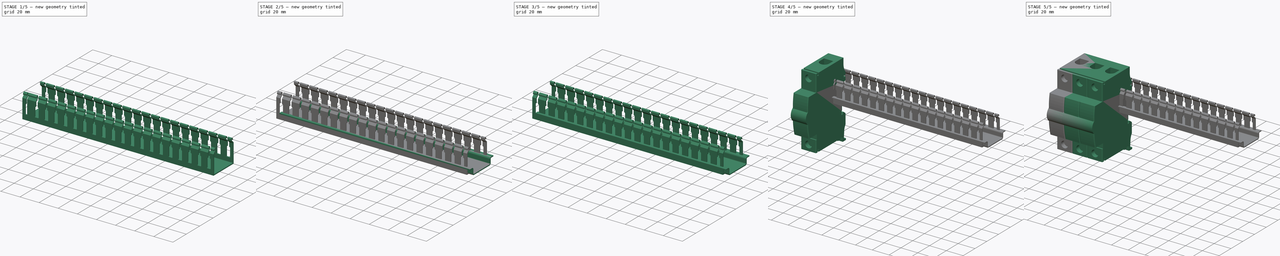
[diagram: build sequence overview — one tinted view per stage of 5, left to right]
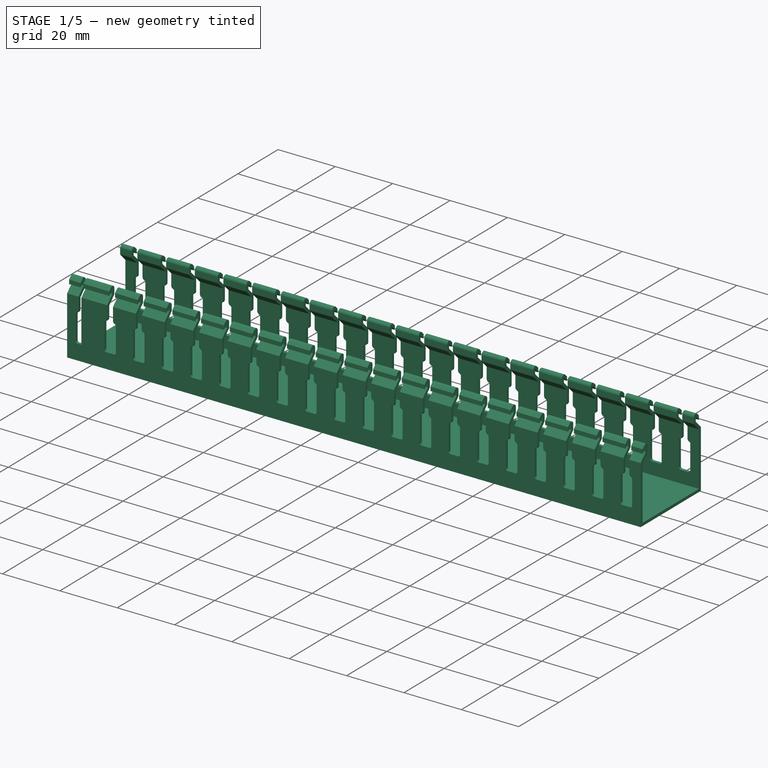
[diagram: stage 1 of 5 — iso view after this stage's code; geometry added in this stage tinted green]
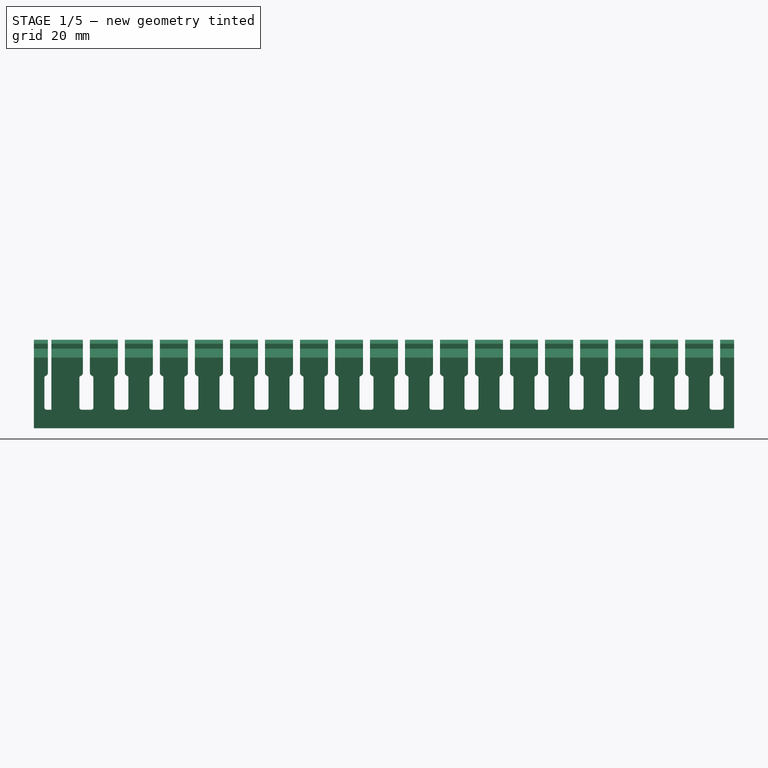
[diagram: stage 1 of 5 — front view after this stage's code; geometry added in this stage tinted green]
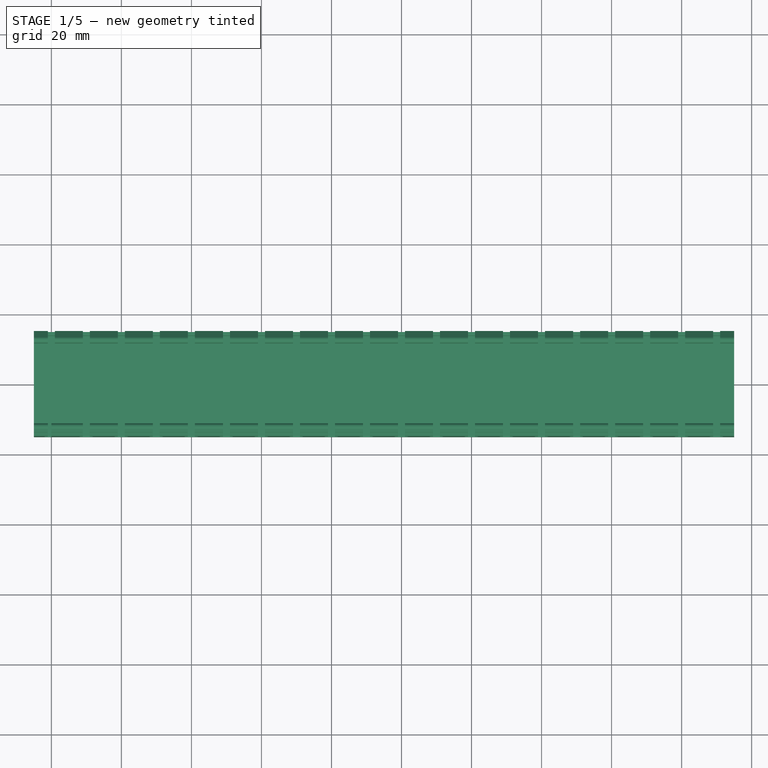
[diagram: stage 1 of 5 — top view after this stage's code; geometry added in this stage tinted green]
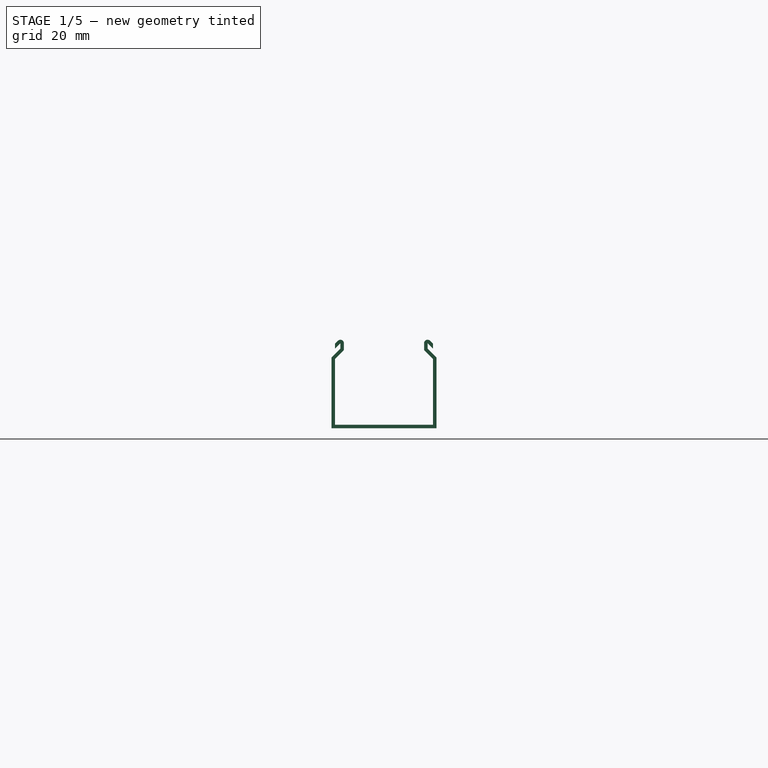
[diagram: stage 1 of 5 — right view after this stage's code; geometry added in this stage tinted green]
FCSTD DOCUMENT  (FreeCAD 1.1R40661 (Git))
Label: electric_test_01
License: All rights reserved
LicenseURL: https://en.wikipedia.org/wiki/All_rights_reserved
objects: Sketcher::SketchObject×56, App::Point×18, Part::Part2DObjectPython×16, Part::Feature×12, App::Part×11, PartDesign::Pocket×9, PartDesign::Pad×7, PartDesign::Body×7, PartDesign::Mirrored×6, PartDesign::LinearPattern×4, PartDesign::Fillet×2, Spreadsheet::Sheet×1, App::DocumentObjectGroup×1, TechDraw::DrawSVGTemplate×1, TechDraw::DrawProjGroupItem×1, TechDraw::DrawPage×1
note: 221 computed .brp shape members not serialized (recipe doc carries the construction recipe); baked Part::Feature solids carry a one-line shape summary decoded from their .brp

FEATURE [PartDesign::Body] Body004  label="DIN_Rail"
  AllowCompound = false
  Group = -> [Sketch041,Pad004]
  Origin = -> Origin037
  Placement = pos=(-157,-169.35,-7.5) rot=(0,0,1;0rad)
  Tip = -> Pad004
FEATURE [App::Point] Origin039  label="Origin018"
  Role = Origin
FEATURE [Sketcher::SketchObject] Sketch042
  ArcFitTolerance = 1e-06
  AttachmentSupport = -> [YZ_Plane019]
  ExternalTypes = [0]
  FullyConstrained = false
  MakeInternals = false
  MapMode = 5
  Placement = pos=(0,0,0) rot=(0.57735,0.57735,0.57735;2.0944rad)
  sketch-geometry (18):
    g0: LineSegment StartX=-14 StartY=22.7373 StartZ=0 EndX=-14 EndY=24.1515 EndZ=0
    g1: LineSegment StartX=-14 StartY=24.1515 StartZ=0 EndX=-13.1515 EndY=25 EndZ=0
    g2: ArcOfCircle CenterX=-12.4444 CenterY=24.2929 CenterZ=0 NormalX=0 NormalY=0 NormalZ=1 AngleXU=0 Radius=1 StartAngle=-9e-16 EndAngle=2.35619
    g3: LineSegment StartX=-11.4444 StartY=24.2929 StartZ=0 EndX=-11.4444 EndY=22.5383 EndZ=0
    g4: ArcOfCircle CenterX=-11.9641 CenterY=22.5383 CenterZ=0 NormalX=0 NormalY=0 NormalZ=1 AngleXU=0 Radius=0.519783 StartAngle=5.49779 EndAngle=6.28319
    g5: LineSegment StartX=-11.5966 StartY=22.1708 StartZ=0 EndX=-14 EndY=19.7674 EndZ=0
    g6: LineSegment StartX=-14 StartY=19.7674 StartZ=0 EndX=-14 EndY=1 EndZ=0
    g7: LineSegment StartX=-14 StartY=1 StartZ=0 EndX=0 EndY=1 EndZ=0
    g8: LineSegment StartX=-14 StartY=22.7373 StartZ=0 EndX=-12.4444 EndY=24.2929 EndZ=0
    g9: LineSegment StartX=-12.4444 StartY=24.2929 StartZ=0 EndX=-12.4444 EndY=22.7373 EndZ=0
    g10: LineSegment StartX=-12.4444 StartY=22.7373 StartZ=0 EndX=-15 EndY=20.1816 EndZ=0
    g11: LineSegment StartX=-15 StartY=20.1816 StartZ=0 EndX=-15 EndY=0 EndZ=0
    g12: LineSegment StartX=-15 StartY=0 StartZ=0 EndX=0 EndY=0 EndZ=0
    g13: LineSegment [constr] StartX=-11.5966 StartY=22.1708 StartZ=0 EndX=-12.3037 EndY=22.8779 EndZ=0
    g14: LineSegment [constr] StartX=-12.4444 StartY=24.2929 StartZ=0 EndX=-11.4444 EndY=24.2929 EndZ=0
    g15: LineSegment [constr] StartX=-20.063 StartY=15.1186 StartZ=0 EndX=-20.8409 EndY=15.8964 EndZ=0
    g16: LineSegment [constr] StartX=-14 StartY=24.1515 StartZ=0 EndX=-13.2929 EndY=23.4444 EndZ=0
    g17: LineSegment StartX=0 StartY=0 StartZ=0 EndX=0 EndY=1 EndZ=0
  constraints (50):
    c: Vertical(g0)
    c: Coincident(g0,g1)
    c: Tangent(g1,g2) = 1.5708
    c: Coincident(g3,g2)
    c: Vertical(g3)
    c: Tangent(g3,g4) = 1.5708
    c: Tangent(g4,g5) = 1.5708
    c: Coincident(g5,g6)
    c: Vertical(g6)
    c: Coincident(g6,g7)
    c: Horizontal(g7)
    c: Coincident(g0,g8)
    c: Coincident(g8,g9)
    c: Vertical(g9)
    c: Coincident(g9,g10)
    c: Coincident(g10,g11)
    c: Vertical(g11)
    c: Coincident(g11,g12)
    c: Horizontal(g12)
    c: DistanceX(g11,g6) = 1
    c: DistanceX(g10,g0) = 1
    c: Parallel(g10,g5)
    c: Parallel(g8,g1)
    c: Tangent(g3,g2,g2) = 1.5708
    c: Coincident(g13,g4)
    c: PointOnObject(g13,g10)
    c: Perpendicular(g13,g10)
    c: Distance(g13,g13) = 1
    c: Coincident(g14,g8)
    c: PointOnObject(g14,g3)
    c: Horizontal(g14)
    c: DistanceX(g14,g14) = 1
    c: Angle(g6,g5) = 2.35619
    c: Angle(g8,g9) = 0.785398
    c: PointOnObject(g15,g10)
    c: Perpendicular(g15,g8) = 4.71239
    c: Distance(g15,g15) = 1.1
    c: Coincident(g16,g0)
    c: PointOnObject(g16,g8)
    c: Perpendicular(g8,g16)
    c: Coincident(g2,g8)
    c: PointOnObject(g9,g4)
    c: Horizontal(g0,g9)
    c: Coincident(g17,g12)
    c: Coincident(g17,g7)
    c: Vertical(g17)
    c: DistanceX(g12,g12) = 15
    c: DistanceY(g11,g1) = 25
    c: DistanceY(g17,g17) = 1
    c: Coincident(g12,g-1)
FEATURE [PartDesign::Pad] Pad005
  Direction = (1,0,0)
  Length = 5
  Length2 = 10
  Placement = pos=(0,0,0) rot=(1,1,1;2.0944rad)
  Profile = -> Sketch042
  ReferenceAxis = -> Sketch042 [N_Axis]
  Refine = true
  Suppressed = false
  Type = 0
FEATURE [PartDesign::Body] Body005  label="Slotted_Cable_Trunking"
  AllowCompound = false
  Group = -> [Sketch042,Pad005,Sketch043,Pocket007,Mirrored002,Mirrored003,LinearPattern002]
  Origin = -> Origin038
  Placement = pos=(-174,-96,-7) rot=(0,0,1;1.5708rad)
  Tip = -> LinearPattern002
FEATURE [App::Point] Origin041  label="Origin018"
  Role = Origin
FEATURE [Sketcher::SketchObject] Sketch044
  ArcFitTolerance = 1e-06
  AttachmentSupport = -> [YZ_Plane020]
  ExternalTypes = [0]
  FullyConstrained = false
  MakeInternals = false
  MapMode = 5
  Placement = pos=(0,0,0) rot=(0.57735,0.57735,0.57735;2.0944rad)
  sketch-geometry (18):
    g0: LineSegment StartX=-14 StartY=22.7373 StartZ=0 EndX=-14 EndY=24.1515 EndZ=0
    g1: LineSegment StartX=-14 StartY=24.1515 StartZ=0 EndX=-13.1515 EndY=25 EndZ=0
    g2: ArcOfCircle CenterX=-12.4444 CenterY=24.2929 CenterZ=0 NormalX=0 NormalY=0 NormalZ=1 AngleXU=0 Radius=1 StartAngle=-9e-16 EndAngle=2.35619
    g3: LineSegment StartX=-11.4444 StartY=24.2929 StartZ=0 EndX=-11.4444 EndY=22.5383 EndZ=0
    g4: ArcOfCircle CenterX=-11.9641 CenterY=22.5383 CenterZ=0 NormalX=0 NormalY=0 NormalZ=1 AngleXU=0 Radius=0.519783 StartAngle=5.49779 EndAngle=6.28319
    g5: LineSegment StartX=-11.5966 StartY=22.1708 StartZ=0 EndX=-14 EndY=19.7674 EndZ=0
    g6: LineSegment StartX=-14 StartY=19.7674 StartZ=0 EndX=-14 EndY=1 EndZ=0
    g7: LineSegment StartX=-14 StartY=1 StartZ=0 EndX=0 EndY=1 EndZ=0
    g8: LineSegment StartX=-14 StartY=22.7373 StartZ=0 EndX=-12.4444 EndY=24.2929 EndZ=0
    g9: LineSegment StartX=-12.4444 StartY=24.2929 StartZ=0 EndX=-12.4444 EndY=22.7373 EndZ=0
    g10: LineSegment StartX=-12.4444 StartY=22.7373 StartZ=0 EndX=-15 EndY=20.1816 EndZ=0
    g11: LineSegment StartX=-15 StartY=20.1816 StartZ=0 EndX=-15 EndY=0 EndZ=0
    g12: LineSegment StartX=-15 StartY=0 StartZ=0 EndX=0 EndY=0 EndZ=0
    g13: LineSegment [constr] StartX=-11.5966 StartY=22.1708 StartZ=0 EndX=-12.3037 EndY=22.8779 EndZ=0
    g14: LineSegment [constr] StartX=-12.4444 StartY=24.2929 StartZ=0 EndX=-11.4444 EndY=24.2929 EndZ=0
    g15: LineSegment [constr] StartX=-20.063 StartY=15.1186 StartZ=0 EndX=-20.8409 EndY=15.8964 EndZ=0
    g16: LineSegment [constr] StartX=-14 StartY=24.1515 StartZ=0 EndX=-13.2929 EndY=23.4444 EndZ=0
    g17: LineSegment StartX=0 StartY=0 StartZ=0 EndX=0 EndY=1 EndZ=0
  constraints (50):
    c: Vertical(g0)
    c: Coincident(g0,g1)
    c: Tangent(g1,g2) = 1.5708
    c: Coincident(g3,g2)
    c: Vertical(g3)
    c: Tangent(g3,g4) = 1.5708
    c: Tangent(g4,g5) = 1.5708
    c: Coincident(g5,g6)
    c: Vertical(g6)
    c: Coincident(g6,g7)
    c: Horizontal(g7)
    c: Coincident(g0,g8)
    c: Coincident(g8,g9)
    c: Vertical(g9)
    c: Coincident(g9,g10)
    c: Coincident(g10,g11)
    c: Vertical(g11)
    c: Coincident(g11,g12)
    c: Horizontal(g12)
    c: DistanceX(g11,g6) = 1
    c: DistanceX(g10,g0) = 1
    c: Parallel(g10,g5)
    c: Parallel(g8,g1)
    c: Tangent(g3,g2,g2) = 1.5708
    c: Coincident(g13,g4)
    c: PointOnObject(g13,g10)
    c: Perpendicular(g13,g10)
    c: Distance(g13,g13) = 1
    c: Coincident(g14,g8)
    c: PointOnObject(g14,g3)
    c: Horizontal(g14)
    c: DistanceX(g14,g14) = 1
    c: Angle(g6,g5) = 2.35619
    c: Angle(g8,g9) = 0.785398
    c: PointOnObject(g15,g10)
    c: Perpendicular(g15,g8) = 4.71239
    c: Distance(g15,g15) = 1.1
    c: Coincident(g16,g0)
    c: PointOnObject(g16,g8)
    c: Perpendicular(g8,g16)
    c: Coincident(g2,g8)
    c: PointOnObject(g9,g4)
    c: Horizontal(g0,g9)
    c: Coincident(g17,g12)
    c: Coincident(g17,g7)
    c: Vertical(g17)
    c: DistanceX(g12,g12) = 15
    c: DistanceY(g11,g1) = 25
    c: DistanceY(g17,g17) = 1
    c: Coincident(g12,g-1)
FEATURE [PartDesign::Pad] Pad006
  Direction = (1,0,0)
  Length = 5
  Length2 = 10
  Placement = pos=(0,0,0) rot=(1,1,1;2.0944rad)
  Profile = -> Sketch044
  ReferenceAxis = -> Sketch044 [N_Axis]
  Refine = true
  Suppressed = false
  Type = 0
FEATURE [Sketcher::SketchObject] Sketch045
  ArcFitTolerance = 1e-06
  AttachmentSupport = -> [Pad006]
  ExternalGeometry = -> [Pad006]
  ExternalTypes = [0]
  FullyConstrained = false
  MakeInternals = false
  MapMode = 5
  Placement = pos=(-3.3e-15,-15,0) rot=(0.57735,0.57735,-0.57735;2.0944rad)
  sketch-geometry (8):
    g0: LineSegment StartX=-25.2929 StartY=-5.1e-15 StartZ=0 EndX=-25.2929 EndY=1 EndZ=0
    g1: LineSegment StartX=-25.2929 StartY=1 StartZ=0 EndX=-15.8641 EndY=1 EndZ=0
    g2: ArcOfCircle CenterX=-15.8641 CenterY=1.9653 CenterZ=0 NormalX=0 NormalY=0 NormalZ=1 AngleXU=0 Radius=0.9653 StartAngle=4.71239 EndAngle=5.95836
    g3: ArcOfCircle CenterX=-14.4721 CenterY=1.49656 CenterZ=0 NormalX=0 NormalY=0 NormalZ=1 AngleXU=0 Radius=0.503444 StartAngle=1.5708 EndAngle=2.81676
    g4: LineSegment StartX=-14.4721 StartY=2 StartZ=0 EndX=-5.93849 EndY=2 EndZ=0
    g5: ArcOfCircle CenterX=-5.93849 CenterY=1.35441 CenterZ=0 NormalX=0 NormalY=0 NormalZ=1 AngleXU=0 Radius=0.645594 StartAngle=2e-16 EndAngle=1.5708
    g6: LineSegment StartX=-5.29289 StartY=1.35441 StartZ=0 EndX=-5.29289 EndY=-5.1e-15 EndZ=0
    g7: LineSegment StartX=-5.29289 StartY=-5.1e-15 StartZ=0 EndX=-25.2929 EndY=-5.1e-15 EndZ=0
  constraints (17):
    c: Coincident(g0,g-10)
    c: PointOnObject(g0,g-9)
    c: Coincident(g0,g1)
    c: Horizontal(g1)
    c: Tangent(g1,g2) = -1.5708
    c: Tangent(g2,g3) = 1.5708
    c: Tangent(g3,g4) = 1.5708
    c: Tangent(g4,g5) = 1.5708
    c: Tangent(g5,g6) = 1.5708
    c: Coincident(g6,g7)
    c: Coincident(g7,g0)
    c: Horizontal(g7)
    c: Horizontal(g4)
    c: DistanceY(g0,g0) = 1
    c: DistanceY(g0,g3) = 2
    c: Vertical(g6)
    c: DistanceX(g7,g7) = 20
FEATURE [PartDesign::Pocket] Pocket008
  BaseFeature = -> Pad006
  Direction = (0,1,0)
  Length = 5
  Length2 = 5
  Placement = pos=(0,0,0) rot=(1,1,1;2.0944rad)
  Profile = -> Sketch045
  ReferenceAxis = -> Sketch045 [N_Axis]
  Refine = true
  Suppressed = false
  Type = 1
FEATURE [PartDesign::Mirrored] Mirrored004
  BaseFeature = -> Pocket008
  MirrorPlane = -> YZ_Plane020
  Placement = pos=(0,0,0) rot=(1,1,1;2.0944rad)
  Refine = true
  Suppressed = false
  TransformMode = 1
FEATURE [PartDesign::Mirrored] Mirrored005
  BaseFeature = -> Mirrored004
  MirrorPlane = -> XZ_Plane020
  Placement = pos=(0,0,0) rot=(1,1,1;2.0944rad)
  Refine = true
  Suppressed = false
  TransformMode = 1
FEATURE [PartDesign::LinearPattern] LinearPattern003
  BaseFeature = -> Mirrored005
  Direction = -> X_Axis020
  Length = 190
  Mode = 1
  Occurrences = 20
  Offset = 10
  Placement = pos=(0,0,0) rot=(1,1,1;2.0944rad)
  Refine = true
  Suppressed = false
  TransformMode = 1
FEATURE [PartDesign::Body] Body006  label="Slotted_Cable_Trunking"
  AllowCompound = false
  Group = -> [Sketch044,Pad006,Sketch045,Pocket008,Mirrored004,Mirrored005,LinearPattern003]
  Origin = -> Origin040
  Placement = pos=(-153,83,-7) rot=(0,0,1;0rad)
  Tip = -> LinearPattern003
FEATURE [Sketcher::SketchObject] Sketch046  label="1"
  ArcFitTolerance = 1e-06
  AttachmentSupport = -> [Part__Feature011]
  ExternalTypes = [0]
  FullyConstrained = false
  MakeInternals = false
  MapMode = 5
  Placement = pos=(0,-7.85e-14,59) rot=(0,0,1;0rad)
  sketch-geometry (1):
    g0: GeomPoint X=-15.9464 Y=15.6094 Z=0
FEATURE [Sketcher::SketchObject] Sketch047  label="2"
  ArcFitTolerance = 1e-06
  AttachmentSupport = -> [Part__Feature011]
  ExternalTypes = [0]
  FullyConstrained = false
  MakeInternals = false
  MapMode = 5
  Placement = pos=(0,-7.85e-14,59) rot=(0,0,1;0rad)
  sketch-geometry (1):
    g0: GeomPoint X=-16.1739 Y=-15.4854 Z=0
FEATURE [Sketcher::SketchObject] Sketch048  label="3"
  ArcFitTolerance = 1e-06
  AttachmentSupport = -> [Part__Feature011]
  ExternalTypes = [0]
  FullyConstrained = false
  MakeInternals = false
  MapMode = 5
  Placement = pos=(0,-7.85e-14,59) rot=(0,0,1;0rad)
  sketch-geometry (1):
    g0: GeomPoint X=-5.5042 Y=14.5624 Z=0
FEATURE [Sketcher::SketchObject] Sketch049  label="4"
  ArcFitTolerance = 1e-06
  AttachmentSupport = -> [Part__Feature011]
  ExternalTypes = [0]
  FullyConstrained = false
  MakeInternals = false
  MapMode = 5
  Placement = pos=(0,-7.85e-14,59) rot=(0,0,1;0rad)
  sketch-geometry (1):
    g0: GeomPoint X=-5.68219 Y=-14.8949 Z=0
FEATURE [Sketcher::SketchObject] Sketch050  label="5"
  ArcFitTolerance = 1e-06
  AttachmentSupport = -> [Part__Feature011]
  ExternalTypes = [0]
  FullyConstrained = false
  MakeInternals = false
  MapMode = 5
  Placement = pos=(0,-7.85e-14,59) rot=(0,0,1;0rad)
  sketch-geometry (1):
    g0: GeomPoint X=5.88714 Y=14.7404 Z=0
FEATURE [Sketcher::SketchObject] Sketch051  label="6"
  ArcFitTolerance = 1e-06
  AttachmentSupport = -> [Part__Feature011]
  ExternalTypes = [0]
  FullyConstrained = false
  MakeInternals = false
  MapMode = 5
  Placement = pos=(0,-7.85e-14,59) rot=(0,0,1;0rad)
  sketch-geometry (1):
    g0: GeomPoint X=5.70915 Y=-15.0729 Z=0
FEATURE [Sketcher::SketchObject] Sketch052  label="13"
  ArcFitTolerance = 1e-06
  AttachmentSupport = -> [Part__Feature011]
  ExternalTypes = [0]
  FullyConstrained = false
  MakeInternals = false
  MapMode = 5
  Placement = pos=(0,-7.85e-14,59) rot=(0,0,1;0rad)
  sketch-geometry (1):
    g0: GeomPoint X=16.2995 Y=14.2954 Z=0
FEATURE [Sketcher::SketchObject] Sketch053  label="14"
  ArcFitTolerance = 1e-06
  AttachmentSupport = -> [Part__Feature011]
  ExternalTypes = [0]
  FullyConstrained = false
  MakeInternals = false
  MapMode = 5
  Placement = pos=(0,-7.85e-14,59) rot=(0,0,1;0rad)
  sketch-geometry (1):
    g0: GeomPoint X=16.2105 Y=-14.8059 Z=0
FEATURE [Sketcher::SketchObject] Sketch054  label="A1"
  ArcFitTolerance = 1e-06
  AttachmentSupport = -> [Part__Feature011]
  ExternalTypes = [0]
  FullyConstrained = false
  MakeInternals = false
  MapMode = 5
  Placement = pos=(0,0,37.1) rot=(0,0,1;0rad)
  sketch-geometry (1):
    g0: GeomPoint X=-16 Y=24.2185 Z=0
FEATURE [Sketcher::SketchObject] Sketch055  label="A2"
  ArcFitTolerance = 1e-06
  AttachmentSupport = -> [Part__Feature011]
  ExternalTypes = [0]
  FullyConstrained = false
  MakeInternals = false
  MapMode = 5
  Placement = pos=(0,0,37.1) rot=(0,0,1;0rad)
  sketch-geometry (1):
    g0: GeomPoint X=16.2313 Y=24.5123 Z=0
FEATURE [App::Part] AESA_CFC5_CJX2__09_P01  label="KM1"
  Group = -> [Part__Feature011,Part__Feature012,Sketch046,Sketch047,Sketch048,Sketch049,Sketch050,Sketch051,Sketch052,Sketch053,Sketch054,Sketch055]
  Origin = -> Origin022
  Placement = pos=(-10.5,2.15,-5.25) rot=(0,0,1;0rad)
FEATURE [Spreadsheet::Sheet] test01
  cells = A1='Wire ID; B1='From Ref; C1='From Pin; D1='To Ref; E1='To Pin; F1='Area; G1='Color; H1='Wire Length; I1='Unique Code; J1='Cable; A2=1; B2='X01; C2=1; D2='Q1; E2=1; F2=2.5; G2='#663300; H2=389.86325901052; I2='E9SP2K; A3=33; B3='X10; C3=1; D3='KM1; E3=14; F3=0.75; G3='#55007f; H3=281.83653043354; I3='A4GT2D; A4='N; B4='X04; C4=2; E4=1; F4=2.5; G4='#0000ff; A5=1; B5='X01; C5=2; E5=1; F5=2.5; G5='#663300; A6=30; B6='KM1; C6=6; D6='X07; E6=1; F6=2.5; G6='#000000; H6=287.984503420498; I6='6XHNVP; A7=33; B7='X10; C7=1; D7='KM1; E7='A2; F7=0.75; G7='#55007f; H7=588.085513327722; I7='2AUJAM; A8=22; B8='KM1; C8=3; D8='Q1; E8=4; F8=2.5; G8='#808080; H8=546.965981135449; I8='0TABGX; A9=2; B9='X02; C9=1; D9='Q1; E9=3; F9=2.5; G9='#808080; H9=406.040787279715; I9='5DQO2H; A10=29; B10='KM1; C10=4; D10='X06; E10=1; F10=2.5; G10='#808080; H10=279.088645094773; I10='NOEKXC; A11=3; B11='X03; C11=2; E11=1; F11=2.5; G11='#ff0000; A12='N; B12='X04; C12=1; D12='KM1; E12='A1; F12=2.5; G12='#0000ff; H12=518.923919032213; I12='B981SB; A13=23; B13='KM1; C13=5; D13='Q1; E13=6; F13=2.5; G13='#000000; H13=577.145077807801; I13='4GNQCZ; A14=3; B14='Q2; C14=1; D14='Q1; E14=5; F14=2.5; G14='#ff0000; H14=121.85199600455; I14='HP5T8Z; A15=3; B15='X03; C15=1; D15='Q1; E15=5; F15=2.5; G15='#ff0000; H15=431.951299608114; I15='RV3NFA; A16=32; B16='KM1; C16=13; D16='X09; E16=1; F16=0.75; G16='#55007f; H16=614.270663759012; I16='SL0XNK; A17=28; B17='KM1; C17=2; D17='X05; E17=1; F17=2.5; G17='#663300; H17=276.508569117578; I17='KVU8PA; A18=33; B18='Q2; C18=2; D18='X08; E18=1; F18=0.75; G18='#55007f; H18=162.353482053977; I18='JG111Q; A19=21; B19='KM1; C19=1; D19='Q1; E19=2; F19=2.5; G19='#663300; H19=510.062269456505; I19='R0KTIS; A20=2; B20='X02; C20=2; E20=1; F20=2.5; G20='#808080
FEATURE [Part::Part2DObjectPython] BSpline  label="1"  # Draft 2D object (typed FeaturePython)
  Area = 0
  Closed = false
  MakeFace = true
  Parameterization = 1
  Points = (33) [(-135.142,-163.26,17),(-135.228,-143.201,17),(-134.015,-120.755,-1.70711),(-134.015,-117.83,-1.70711),(-134.116,-113.898,-1.70711),+28 more]
FEATURE [Part::Part2DObjectPython] Wire  label="track"  # Draft 2D object (typed FeaturePython)
  Area = 0
  ChamferSize = 0
  Closed = false
  End = (10,-88.5,-1.70711)
  FilletRadius = 0
  Length = 529.006
  MakeFace = true
  Placement = pos=(1,83.5,-1.70711) rot=(0,0,1;1.5708rad)
  Points = (4) [(0,0,0),(-1,174,0),(-172,175,0),(-172,-9,0)]
  Start = (1,83.5,-1.70711)
  Subdivisions = 0
FEATURE [Part::Part2DObjectPython] BSpline001  label="33"  # Draft 2D object (typed FeaturePython)
  Area = 0
  Closed = false
  MakeFace = true
  Parameterization = 1
  Points = (17) [(-83.6916,-163.26,17),(-83.6221,-143.078,17),(-83.0876,-117.337,-1.70711),(-83.2893,-105.841,-1.70711),(-82.6842,-95.8578,-1.70711),+12 more]
FEATURE [Part::Part2DObjectPython] BSpline002  label="N"  # Draft 2D object (typed FeaturePython)
  Area = 0
  Closed = false
  MakeFace = true
  Parameterization = 1
  Points = (33) [(-119.692,-163.26,17),(-120.604,-144.57,12.3232),(-118.727,-113.662,-1.70711),(-118.627,-105.897,-1.70711),(-123.34,-88.5,-1.70711),+28 more]
FEATURE [Part::Part2DObjectPython] BSpline003  label="30"  # Draft 2D object (typed FeaturePython)
  Area = 0
  Closed = false
  MakeFace = true
  Parameterization = 1
  Points = (17) [(-4.79085,-12.9229,53.75),(-4.875,-35.0574,53.75),(-9,-62.5,-1.70711),(-9,-66.5,-1.70711),(-9,-70.5,-1.70711),(-12,-88.5,-1.70711),+11 more]
FEATURE [Part::Part2DObjectPython] BSpline004  label="33"  # Draft 2D object (typed FeaturePython)
  Area = 0
  Closed = false
  MakeFace = true
  Parameterization = 1
  Points = (33) [(-83.6916,-163.26,17),(-83.9916,-144.063,17),(-83.2893,-106.043,-1.70711),(-83.6926,-94.3452,-1.70711),(-86.4747,-88.5,-1.70711),+28 more]
FEATURE [Part::Part2DObjectPython] BSpline005  label="22"  # Draft 2D object (typed FeaturePython)
  Area = 0
  Closed = false
  MakeFace = true
  Parameterization = 1
  Points = (33) [(-16.0042,16.7124,53.75),(-16.125,35.3574,53.75),(-13,60.5,-1.70711),(-13,66.5,-1.70711),(-13,83.5,-1.70711),(-43.6958,83.2501,-1.60334),+27 more]
FEATURE [Part::Part2DObjectPython] BSpline006  label="2"  # Draft 2D object (typed FeaturePython)
  Area = 0
  Closed = false
  MakeFace = true
  Parameterization = 1
  Points = (33) [(-129.992,-163.26,17),(-130.302,-143.324,17),(-129.142,-109.108,-1.70711),(-128.839,-104.772,-1.70711),(-130.736,-89.0386,-1.69261),+28 more]
FEATURE [Part::Part2DObjectPython] BSpline007  label="29"  # Draft 2D object (typed FeaturePython)
  Area = 0
  Closed = false
  MakeFace = true
  Parameterization = 1
  Points = (17) [(-16.1822,-12.7449,53.75),(-16.875,-34.0574,53.75),(-22,-66.5,-1.70711),(-22,-70.5,-1.70711),(-24.5156,-88.1987,-1.72625),+12 more]
FEATURE [Part::Part2DObjectPython] BSpline008  label="23"  # Draft 2D object (typed FeaturePython)
  Area = 0
  Closed = false
  MakeFace = true
  Parameterization = 1
  Points = (33) [(-4.61286,16.8904,53.75),(-4.40295,39.7642,53.75),(-2.95085,62.9317,-1.70711),(-3.28882,66.6494,-1.70711),(-6.75083,83.6586,-1.51223),+28 more]
FEATURE [Part::Part2DObjectPython] BSpline009  label="3"  # Draft 2D object (typed FeaturePython)
  Area = 0
  Closed = false
  MakeFace = true
  Parameterization = 1
  Points = (17) [(-65.946,36.0042,9.8),(-65.6241,44.1757,9.66813),(-65.1953,64.5967,-1.70711),(-65.1207,66.785,-1.70711),(-64.698,72.1811,-1.70711),+12 more]
FEATURE [Part::Part2DObjectPython] BSpline010  label="3"  # Draft 2D object (typed FeaturePython)
  Area = 0
  Closed = false
  MakeFace = true
  Parameterization = 1
  Points = (65) [(-124.842,-163.26,17),(-124.985,-153.231,17),(-125.129,-143.201,17),(-124.17,-131.542,7.64645),(-123.211,-119.883,-1.70711),+60 more]
FEATURE [Part::Part2DObjectPython] BSpline011  label="32"  # Draft 2D object (typed FeaturePython)
  Area = 0
  Closed = false
  MakeFace = true
  Parameterization = 1
  Points = (33) [(5.79952,16.4454,53.75),(5.53334,37.688,53.75),(7,62.5,-1.70711),(7,67.5,-1.70711),(7,77.5,-1.70711),(-27.5363,84.538,-0.35912),+27 more]
FEATURE [Part::Part2DObjectPython] BSpline012  label="28"  # Draft 2D object (typed FeaturePython)
  Area = 0
  Closed = false
  MakeFace = true
  Parameterization = 1
  Points = (17) [(-26.6739,-13.3354,53.75),(-26.875,-36.0574,53.75),(-31,-62.5,-1.70711),(-32,-66.5,-1.70711),(-33,-70.5,-1.70711),(-34,-79.5,-1.70711),+11 more]
FEATURE [Part::Part2DObjectPython] BSpline013  label="33"  # Draft 2D object (typed FeaturePython)
  Area = 0
  Closed = false
  MakeFace = true
  Parameterization = 1
  Points = (17) [(-65.8643,-37.2195,9.8),(-65.9819,-51.4382,9.8),(-66.5518,-69.1808,-1.70711),(-66.7982,-78.0487,-1.70711),(-67.6603,-83.7143,-1.70711),+12 more]
FEATURE [Part::Part2DObjectPython] BSpline014  label="21"  # Draft 2D object (typed FeaturePython)
  Area = 0
  Closed = false
  MakeFace = true
  Parameterization = 1
  Points = (33) [(-26.4464,17.7594,53.75),(-26.6309,36.3186,53.75),(-27.4945,40.4722,26.0214),(-28.0186,51.8286,12.1572),(-28.5426,63.185,-1.70711),+28 more]
FEATURE [App::DocumentObjectGroup] Group  label="wires"
  Group = -> [BSpline014,BSpline009,BSpline006,BSpline005,BSpline002,BSpline,BSpline003,BSpline001,BSpline007,BSpline013,BSpline012,BSpline010,BSpline004,BSpline008,BSpline011]
FEATURE [TechDraw::DrawSVGTemplate] Template
  Height = 210
  Orientation = 1
  Template = /snap/freecad/1331/usr/share/Mod/TechDraw/Templates/Default_Template_A4_Landscape.svg
  Width = 297
FEATURE [TechDraw::DrawProjGroupItem] View
  CoarseView = false
  Direction = (0,0,1)
  Focus = 100
  HardHidden = false
  IsoCount = 0
  IsoHidden = false
  IsoVisible = false
  LockPosition = false
  Perspective = false
  Rotation = 0
  RotationVector = (1,0,0)
  Scale = 0.5
  ScaleType = 2
  ScrubCount = 1
  SeamHidden = false
  SeamVisible = false
  SmoothHidden = false
  SmoothVisible = true
  Source = -> [Group,Body006,Body005,Body004,UT_2_5_select009,UT_2_5_select008,UT_2_5_select007,UT_2_5_select,Body,Body001,UT_2_5_select001,UT_2_5_select002,UT_2_5_select003,Body002,Body003,UT_2_5_select004,AESA_CFC5_CJX2__09_P01,UT_2_5_select005,UT_2_5_select006]
  Type = 0
  X = 105.213
  XDirection = (1,0,0)
  Y = 113.548
FEATURE [TechDraw::DrawPage] Page
  KeepUpdated = true
  NextBalloonIndex = 1
  ProjectionType = 0
  Template = -> Template
  Views = -> [View]
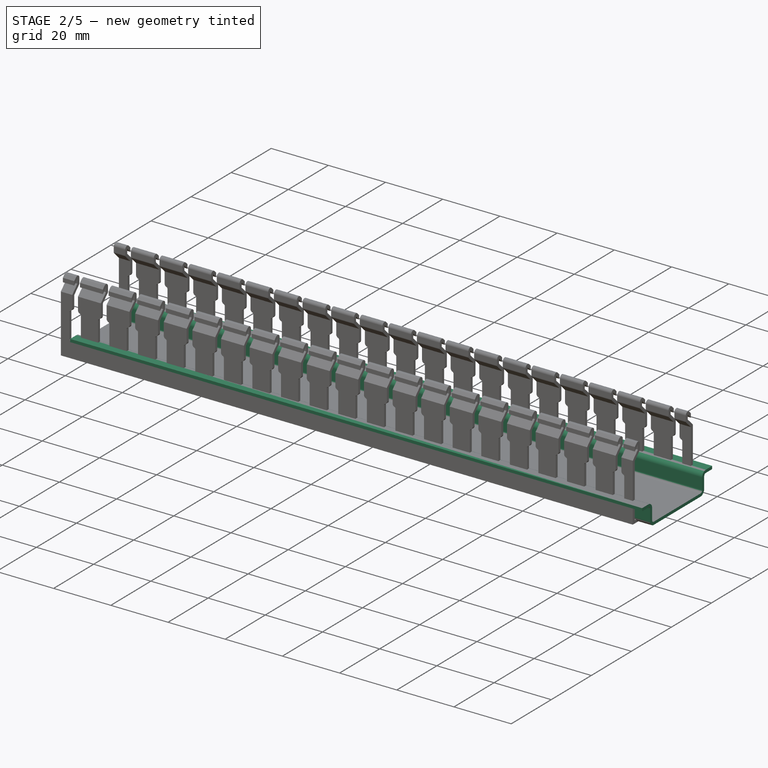
[diagram: stage 2 of 5 — iso view after this stage's code; geometry added in this stage tinted green]
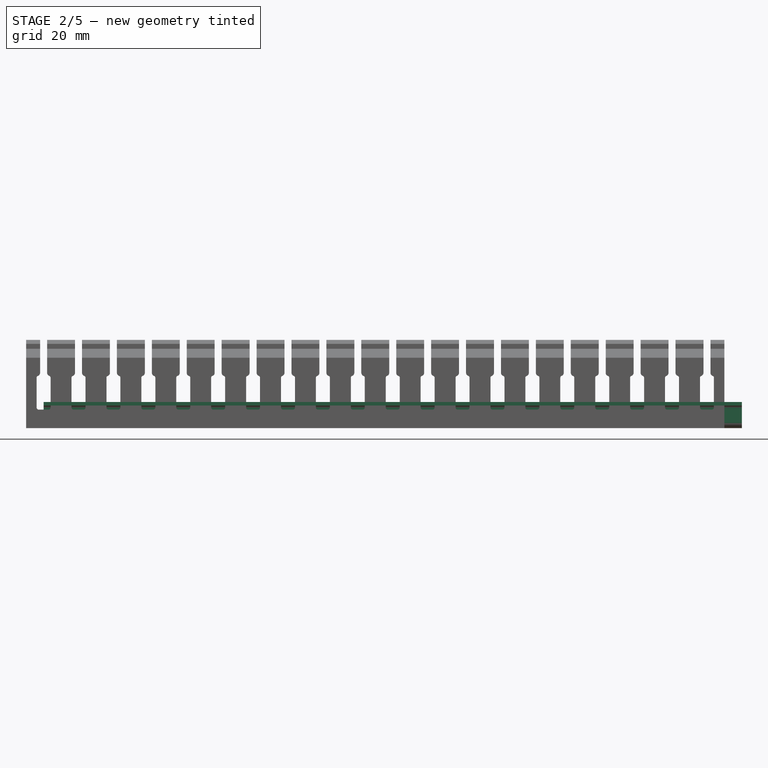
[diagram: stage 2 of 5 — front view after this stage's code; geometry added in this stage tinted green]
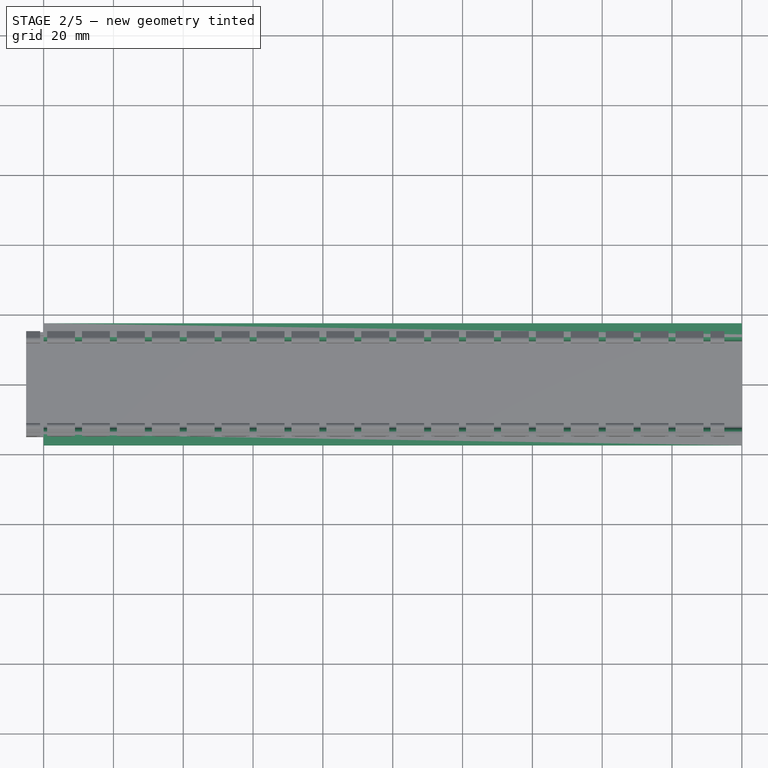
[diagram: stage 2 of 5 — top view after this stage's code; geometry added in this stage tinted green]
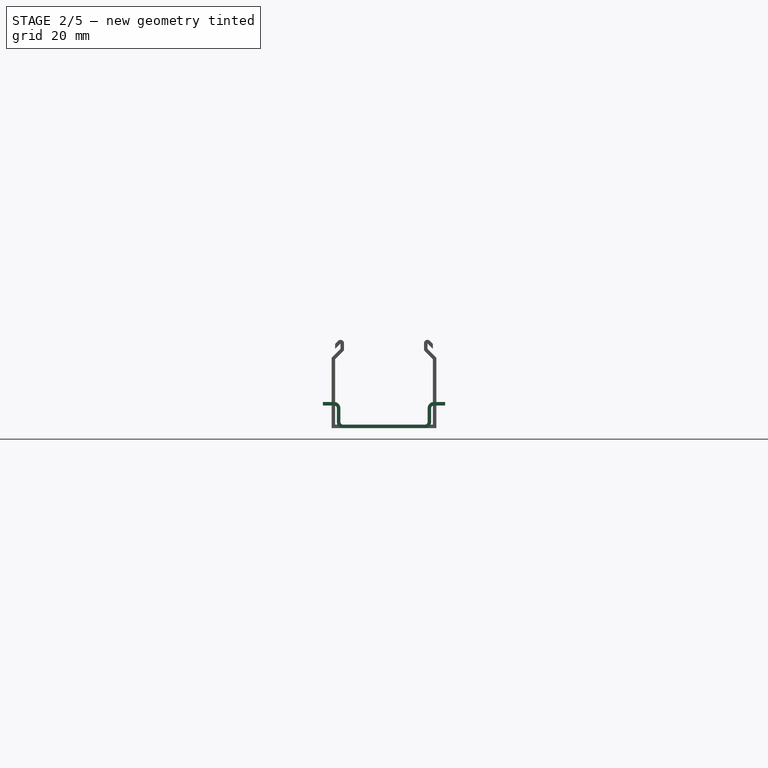
[diagram: stage 2 of 5 — right view after this stage's code; geometry added in this stage tinted green]
FEATURE [PartDesign::Body] Body003  label="Slotted_Cable_Trunking"
  AllowCompound = false
  Group = -> [Sketch027,Pad003,Sketch028,Pocket006,Mirrored,Mirrored001,LinearPattern001]
  Origin = -> Origin016
  Placement = pos=(-153,-87,-7) rot=(0,0,1;0rad)
  Tip = -> LinearPattern001
FEATURE [Part::Feature] Part__Feature011  label="AESA-CFC5(CJX2)-09-P01"
  shape: bbox 45.2 x 70.5 x 79 mm, 1026 faces (baked)
FEATURE [Part::Feature] Part__Feature012  label="AESA-CFC5(CJX2)-09-P01"
  shape: bbox 25.5 x 21.05 x 5.148 mm, 24 faces (baked)
FEATURE [App::Point] Origin023  label="Origin"
  Role = Origin
FEATURE [App::Point] Origin024  label="Origin013"
  Role = Origin
FEATURE [Part::Feature] Part__Feature013  label="UT_2.5-select003"
  AttacherType = Attacher::AttachEngine3D
  Placement = pos=(5.15,-7.19886,17.4678) rot=(0.552363,0.624332,0.552363;2.02535rad)
  shape: bbox 5.15 x 48 x 46.85 mm, 140 faces (baked)
FEATURE [Sketcher::SketchObject] Sketch029  label="2"
  ArcFitTolerance = 1e-06
  AttachmentSupport = -> [Part__Feature013]
  ExternalTypes = [0]
  FullyConstrained = false
  MakeInternals = false
  MapMode = 5
  Placement = pos=(5.15,-7.19886,23.85) rot=(0,0,-1;1.5708rad)
  sketch-geometry (1):
    g0: GeomPoint X=-25 Y=-2.35166 Z=0
FEATURE [Sketcher::SketchObject] Sketch030  label="1"
  ArcFitTolerance = 1e-06
  AttachmentSupport = -> [Part__Feature013]
  ExternalTypes = [0]
  FullyConstrained = false
  MakeInternals = false
  MapMode = 5
  Placement = pos=(5.15,-7.19886,23.85) rot=(0,0,-1;1.5708rad)
  sketch-geometry (1):
    g0: GeomPoint X=-37.2886 Y=-2.29159 Z=0
FEATURE [App::Part] UT_2_5_select004  label="X05"
  Group = -> [Part__Feature013,Sketch029,Sketch030]
  Origin = -> Origin025
  Placement = pos=(-116.55,-193.35,-6.85) rot=(0,0,1;0rad)
FEATURE [App::Point] Origin026  label="Origin013"
  Role = Origin
FEATURE [Part::Feature] Part__Feature014  label="UT_2.5-select003"
  AttacherType = Attacher::AttachEngine3D
  Placement = pos=(5.15,-7.19886,17.4678) rot=(0.552363,0.624332,0.552363;2.02535rad)
  shape: bbox 5.15 x 48 x 46.85 mm, 140 faces (baked)
FEATURE [Sketcher::SketchObject] Sketch031  label="2"
  ArcFitTolerance = 1e-06
  AttachmentSupport = -> [Part__Feature014]
  ExternalTypes = [0]
  FullyConstrained = false
  MakeInternals = false
  MapMode = 5
  Placement = pos=(5.15,-7.19886,23.85) rot=(0,0,-1;1.5708rad)
  sketch-geometry (1):
    g0: GeomPoint X=-25 Y=-2.35166 Z=0
FEATURE [Sketcher::SketchObject] Sketch032  label="1"
  ArcFitTolerance = 1e-06
  AttachmentSupport = -> [Part__Feature014]
  ExternalTypes = [0]
  FullyConstrained = false
  MakeInternals = false
  MapMode = 5
  Placement = pos=(5.15,-7.19886,23.85) rot=(0,0,-1;1.5708rad)
  sketch-geometry (1):
    g0: GeomPoint X=-37.2886 Y=-2.29159 Z=0
FEATURE [App::Part] UT_2_5_select005  label="X06"
  Group = -> [Part__Feature014,Sketch031,Sketch032]
  Origin = -> Origin027
  Placement = pos=(-110.55,-193.35,-6.85) rot=(0,0,1;0rad)
FEATURE [App::Point] Origin028  label="Origin013"
  Role = Origin
FEATURE [Part::Feature] Part__Feature015  label="UT_2.5-select003"
  AttacherType = Attacher::AttachEngine3D
  Placement = pos=(5.15,-7.19886,17.4678) rot=(0.552363,0.624332,0.552363;2.02535rad)
  shape: bbox 5.15 x 48 x 46.85 mm, 140 faces (baked)
FEATURE [Sketcher::SketchObject] Sketch033  label="2"
  ArcFitTolerance = 1e-06
  AttachmentSupport = -> [Part__Feature015]
  ExternalTypes = [0]
  FullyConstrained = false
  MakeInternals = false
  MapMode = 5
  Placement = pos=(5.15,-7.19886,23.85) rot=(0,0,-1;1.5708rad)
  sketch-geometry (1):
    g0: GeomPoint X=-25 Y=-2.35166 Z=0
FEATURE [Sketcher::SketchObject] Sketch034  label="1"
  ArcFitTolerance = 1e-06
  AttachmentSupport = -> [Part__Feature015]
  ExternalTypes = [0]
  FullyConstrained = false
  MakeInternals = false
  MapMode = 5
  Placement = pos=(5.15,-7.19886,23.85) rot=(0,0,-1;1.5708rad)
  sketch-geometry (1):
    g0: GeomPoint X=-37.2886 Y=-2.29159 Z=0
FEATURE [App::Part] UT_2_5_select006  label="X07"
  Group = -> [Part__Feature015,Sketch033,Sketch034]
  Origin = -> Origin029
  Placement = pos=(-104.55,-193.35,-6.85) rot=(0,0,1;0rad)
FEATURE [App::Point] Origin030  label="Origin013"
  Role = Origin
FEATURE [Part::Feature] Part__Feature016  label="UT_2.5-select003"
  AttacherType = Attacher::AttachEngine3D
  Placement = pos=(5.15,-7.19886,17.4678) rot=(0.552363,0.624332,0.552363;2.02535rad)
  shape: bbox 5.15 x 48 x 46.85 mm, 140 faces (baked)
FEATURE [Sketcher::SketchObject] Sketch035  label="2"
  ArcFitTolerance = 1e-06
  AttachmentSupport = -> [Part__Feature016]
  ExternalTypes = [0]
  FullyConstrained = false
  MakeInternals = false
  MapMode = 5
  Placement = pos=(5.15,-7.19886,23.85) rot=(0,0,-1;1.5708rad)
  sketch-geometry (1):
    g0: GeomPoint X=-25 Y=-2.35166 Z=0
FEATURE [Sketcher::SketchObject] Sketch036  label="1"
  ArcFitTolerance = 1e-06
  AttachmentSupport = -> [Part__Feature016]
  ExternalTypes = [0]
  FullyConstrained = false
  MakeInternals = false
  MapMode = 5
  Placement = pos=(5.15,-7.19886,23.85) rot=(0,0,-1;1.5708rad)
  sketch-geometry (1):
    g0: GeomPoint X=-37.2886 Y=-2.29159 Z=0
FEATURE [App::Part] UT_2_5_select007  label="X08"
  Group = -> [Part__Feature016,Sketch035,Sketch036]
  Origin = -> Origin031
  Placement = pos=(-98.55,-193.35,-6.85) rot=(0,0,1;0rad)
FEATURE [App::Point] Origin032  label="Origin013"
  Role = Origin
FEATURE [Part::Feature] Part__Feature017  label="UT_2.5-select003"
  AttacherType = Attacher::AttachEngine3D
  Placement = pos=(5.15,-7.19886,17.4678) rot=(0.552363,0.624332,0.552363;2.02535rad)
  shape: bbox 5.15 x 48 x 46.85 mm, 140 faces (baked)
FEATURE [Sketcher::SketchObject] Sketch037  label="2"
  ArcFitTolerance = 1e-06
  AttachmentSupport = -> [Part__Feature017]
  ExternalTypes = [0]
  FullyConstrained = false
  MakeInternals = false
  MapMode = 5
  Placement = pos=(5.15,-7.19886,23.85) rot=(0,0,-1;1.5708rad)
  sketch-geometry (1):
    g0: GeomPoint X=-25 Y=-2.35166 Z=0
FEATURE [Sketcher::SketchObject] Sketch038  label="1"
  ArcFitTolerance = 1e-06
  AttachmentSupport = -> [Part__Feature017]
  ExternalTypes = [0]
  FullyConstrained = false
  MakeInternals = false
  MapMode = 5
  Placement = pos=(5.15,-7.19886,23.85) rot=(0,0,-1;1.5708rad)
  sketch-geometry (1):
    g0: GeomPoint X=-37.2886 Y=-2.29159 Z=0
FEATURE [App::Part] UT_2_5_select008  label="X09"
  Group = -> [Part__Feature017,Sketch037,Sketch038]
  Origin = -> Origin033
  Placement = pos=(-92.55,-193.35,-6.85) rot=(0,0,1;0rad)
FEATURE [App::Point] Origin034  label="Origin013"
  Role = Origin
FEATURE [Part::Feature] Part__Feature018  label="UT_2.5-select003"
  AttacherType = Attacher::AttachEngine3D
  Placement = pos=(5.15,-7.19886,17.4678) rot=(0.552363,0.624332,0.552363;2.02535rad)
  shape: bbox 5.15 x 48 x 46.85 mm, 140 faces (baked)
FEATURE [Sketcher::SketchObject] Sketch039  label="2"
  ArcFitTolerance = 1e-06
  AttachmentSupport = -> [Part__Feature018]
  ExternalTypes = [0]
  FullyConstrained = false
  MakeInternals = false
  MapMode = 5
  Placement = pos=(5.15,-7.19886,23.85) rot=(0,0,-1;1.5708rad)
  sketch-geometry (1):
    g0: GeomPoint X=-25 Y=-2.35166 Z=0
FEATURE [Sketcher::SketchObject] Sketch040  label="1"
  ArcFitTolerance = 1e-06
  AttachmentSupport = -> [Part__Feature018]
  ExternalTypes = [0]
  FullyConstrained = false
  MakeInternals = false
  MapMode = 5
  Placement = pos=(5.15,-7.19886,23.85) rot=(0,0,-1;1.5708rad)
  sketch-geometry (1):
    g0: GeomPoint X=-37.2886 Y=-2.29159 Z=0
FEATURE [App::Part] UT_2_5_select009  label="X10"
  Group = -> [Part__Feature018,Sketch039,Sketch040]
  Origin = -> Origin035
  Placement = pos=(-86.55,-193.35,-6.85) rot=(0,0,1;0rad)
FEATURE [App::Point] Origin036  label="Origin015"
  Role = Origin
FEATURE [Sketcher::SketchObject] Sketch041
  ArcFitTolerance = 1e-06
  AttachmentSupport = -> [YZ_Plane018]
  ExternalTypes = [0]
  FullyConstrained = true
  MakeInternals = false
  MapMode = 5
  Placement = pos=(0,0,0) rot=(0.57735,0.57735,0.57735;2.0944rad)
  sketch-geometry (20):
    g0: LineSegment StartX=-17.5 StartY=6.5 StartZ=0 EndX=-17.5 EndY=7.5 EndZ=0
    g1: LineSegment StartX=-17.5 StartY=7.5 StartZ=0 EndX=-14.3 EndY=7.5 EndZ=0
    g2: ArcOfCircle CenterX=-14.3 CenterY=5.7 CenterZ=0 NormalX=0 NormalY=0 NormalZ=1 AngleXU=0 Radius=1.8 StartAngle=1e-16 EndAngle=1.5708
    g3: LineSegment StartX=-12.5 StartY=5.7 StartZ=0 EndX=-12.5 EndY=1.8 EndZ=0
    g4: LineSegment StartX=-11.7 StartY=1 StartZ=0 EndX=11.7 EndY=1 EndZ=0
    g5: LineSegment StartX=12.5 StartY=1.8 StartZ=0 EndX=12.5 EndY=5.7 EndZ=0
    g6: ArcOfCircle CenterX=14.3 CenterY=5.7 CenterZ=0 NormalX=0 NormalY=0 NormalZ=1 AngleXU=0 Radius=1.8 StartAngle=1.5708 EndAngle=3.14159
    g7: LineSegment StartX=14.3 StartY=7.5 StartZ=0 EndX=17.5 EndY=7.5 EndZ=0
    g8: LineSegment StartX=17.5 StartY=7.5 StartZ=0 EndX=17.5 EndY=6.5 EndZ=0
    g9: LineSegment StartX=17.5 StartY=6.5 StartZ=0 EndX=14.3 EndY=6.5 EndZ=0
    g10: ArcOfCircle CenterX=14.3 CenterY=5.7 CenterZ=0 NormalX=0 NormalY=0 NormalZ=1 AngleXU=0 Radius=0.8 StartAngle=1.5708 EndAngle=3.14159
    g11: LineSegment StartX=13.5 StartY=5.7 StartZ=0 EndX=13.5 EndY=1.8 EndZ=0
    g12: LineSegment StartX=11.7 StartY=7e-16 StartZ=0 EndX=-11.7 EndY=7e-16 EndZ=0
    g13: LineSegment StartX=-13.5 StartY=1.8 StartZ=0 EndX=-13.5 EndY=5.7 EndZ=0
    g14: ArcOfCircle CenterX=-14.3 CenterY=5.7 CenterZ=0 NormalX=0 NormalY=0 NormalZ=1 AngleXU=0 Radius=0.8 StartAngle=0 EndAngle=1.5708
    g15: LineSegment StartX=-14.3 StartY=6.5 StartZ=0 EndX=-17.5 EndY=6.5 EndZ=0
    g16: ArcOfCircle CenterX=-11.7 CenterY=1.8 CenterZ=0 NormalX=0 NormalY=0 NormalZ=1 AngleXU=0 Radius=0.8 StartAngle=3.14159 EndAngle=4.71239
    g17: ArcOfCircle CenterX=11.7 CenterY=1.8 CenterZ=0 NormalX=0 NormalY=0 NormalZ=1 AngleXU=0 Radius=0.8 StartAngle=4.71239 EndAngle=6.28319
    g18: ArcOfCircle CenterX=11.7 CenterY=1.8 CenterZ=0 NormalX=0 NormalY=0 NormalZ=1 AngleXU=0 Radius=1.8 StartAngle=4.71239 EndAngle=6.28319
    g19: ArcOfCircle CenterX=-11.7 CenterY=1.8 CenterZ=0 NormalX=0 NormalY=0 NormalZ=1 AngleXU=0 Radius=1.8 StartAngle=3.14159 EndAngle=4.71239
  constraints (47):
    c: Vertical(g0)
    c: Coincident(g0,g1)
    c: Horizontal(g1)
    c: Tangent(g1,g2) = 1.5708
    c: Tangent(g2,g3) = 1.5708
    c: Tangent(g5,g6) = 1.5708
    c: Tangent(g6,g7) = 1.5708
    c: Coincident(g7,g8)
    c: Vertical(g8)
    c: Coincident(g8,g9)
    c: Horizontal(g9)
    c: Tangent(g9,g10) = -1.5708
    c: Tangent(g10,g11) = -1.5708
    c: Horizontal(g12)
    c: Tangent(g13,g14) = -1.5708
    c: Tangent(g14,g15) = -1.5708
    c: Coincident(g15,g0)
    c: Vertical(g11)
    c: Vertical(g5)
    c: Vertical(g3)
    c: Vertical(g13)
    c: Equal(g0,g8)
    c: Equal(g1,g7)
    c: Horizontal(g7)
    c: Horizontal(g6,g1)
    c: Coincident(g6,g10)
    c: Coincident(g2,g14)
    c: Equal(g14,g10)
    c: Radius(g14) = 0.8
    c: DistanceX(g0,g7) = 35
    c: Tangent(g3,g16) = -1.5708
    c: Tangent(g4,g16) = -1.5708
    c: Tangent(g4,g17) = -1.5708
    c: Tangent(g5,g17) = -1.5708
    c: Tangent(g11,g18) = 1.5708
    c: Tangent(g12,g18) = 1.5708
    c: Tangent(g12,g19) = 1.5708
    c: Tangent(g13,g19) = 1.5708
    c: Coincident(g16,g19)
    c: Coincident(g17,g18)
    c: Equal(g17,g16)
    c: Radius(g17) = 0.8
    c: Distance(g4,g12) = 1
    c: DistanceX(g13,g11) = 27
    c: PointOnObject(g12,g-1)
    c: DistanceY(g12,g0) = 7.5
    c: Symmetric(g4,g4,g-2)
FEATURE [PartDesign::Pad] Pad004
  Direction = (1,0,0)
  Length = 200
  Length2 = 10
  Placement = pos=(0,0,0) rot=(1,1,1;2.0944rad)
  Profile = -> Sketch041
  ReferenceAxis = -> Sketch041 [N_Axis]
  Refine = true
  Suppressed = false
  Type = 0
FEATURE [Sketcher::SketchObject] Sketch043
  ArcFitTolerance = 1e-06
  AttachmentSupport = -> [Pad005]
  ExternalGeometry = -> [Pad005]
  ExternalTypes = [0]
  FullyConstrained = false
  MakeInternals = false
  MapMode = 5
  Placement = pos=(-3.3e-15,-15,0) rot=(0.57735,0.57735,-0.57735;2.0944rad)
  sketch-geometry (8):
    g0: LineSegment StartX=-25.2929 StartY=-5.1e-15 StartZ=0 EndX=-25.2929 EndY=1 EndZ=0
    g1: LineSegment StartX=-25.2929 StartY=1 StartZ=0 EndX=-15.8641 EndY=1 EndZ=0
    g2: ArcOfCircle CenterX=-15.8641 CenterY=1.9653 CenterZ=0 NormalX=0 NormalY=0 NormalZ=1 AngleXU=0 Radius=0.9653 StartAngle=4.71239 EndAngle=5.95836
    g3: ArcOfCircle CenterX=-14.4721 CenterY=1.49656 CenterZ=0 NormalX=0 NormalY=0 NormalZ=1 AngleXU=0 Radius=0.503444 StartAngle=1.5708 EndAngle=2.81676
    g4: LineSegment StartX=-14.4721 StartY=2 StartZ=0 EndX=-5.93849 EndY=2 EndZ=0
    g5: ArcOfCircle CenterX=-5.93849 CenterY=1.35441 CenterZ=0 NormalX=0 NormalY=0 NormalZ=1 AngleXU=0 Radius=0.645594 StartAngle=2e-16 EndAngle=1.5708
    g6: LineSegment StartX=-5.29289 StartY=1.35441 StartZ=0 EndX=-5.29289 EndY=-5.1e-15 EndZ=0
    g7: LineSegment StartX=-5.29289 StartY=-5.1e-15 StartZ=0 EndX=-25.2929 EndY=-5.1e-15 EndZ=0
  constraints (17):
    c: Coincident(g0,g-10)
    c: PointOnObject(g0,g-9)
    c: Coincident(g0,g1)
    c: Horizontal(g1)
    c: Tangent(g1,g2) = -1.5708
    c: Tangent(g2,g3) = 1.5708
    c: Tangent(g3,g4) = 1.5708
    c: Tangent(g4,g5) = 1.5708
    c: Tangent(g5,g6) = 1.5708
    c: Coincident(g6,g7)
    c: Coincident(g7,g0)
    c: Horizontal(g7)
    c: Horizontal(g4)
    c: DistanceY(g0,g0) = 1
    c: DistanceY(g0,g3) = 2
    c: Vertical(g6)
    c: DistanceX(g7,g7) = 20
FEATURE [PartDesign::Pocket] Pocket007
  BaseFeature = -> Pad005
  Direction = (0,1,0)
  Length = 5
  Length2 = 5
  Placement = pos=(0,0,0) rot=(1,1,1;2.0944rad)
  Profile = -> Sketch043
  ReferenceAxis = -> Sketch043 [N_Axis]
  Refine = true
  Suppressed = false
  Type = 1
FEATURE [PartDesign::Mirrored] Mirrored002
  BaseFeature = -> Pocket007
  MirrorPlane = -> YZ_Plane019
  Placement = pos=(0,0,0) rot=(1,1,1;2.0944rad)
  Refine = true
  Suppressed = false
  TransformMode = 1
FEATURE [PartDesign::Mirrored] Mirrored003
  BaseFeature = -> Mirrored002
  MirrorPlane = -> XZ_Plane019
  Placement = pos=(0,0,0) rot=(1,1,1;2.0944rad)
  Refine = true
  Suppressed = false
  TransformMode = 1
FEATURE [PartDesign::LinearPattern] LinearPattern002
  BaseFeature = -> Mirrored003
  Direction = -> X_Axis019
  Length = 190
  Mode = 1
  Occurrences = 20
  Offset = 10
  Placement = pos=(0,0,0) rot=(1,1,1;2.0944rad)
  Refine = true
  Suppressed = false
  TransformMode = 1
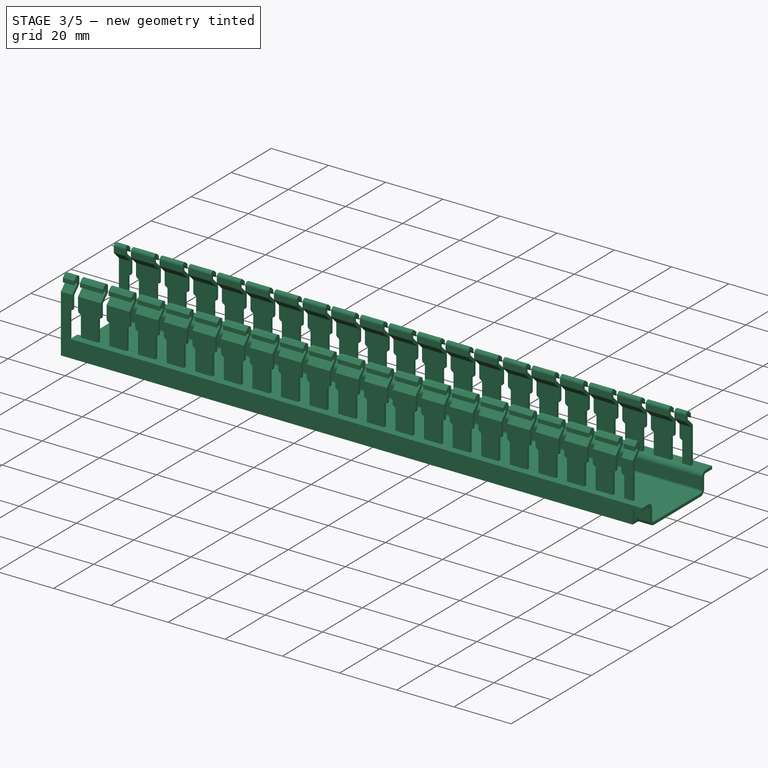
[diagram: stage 3 of 5 — iso view after this stage's code; geometry added in this stage tinted green]
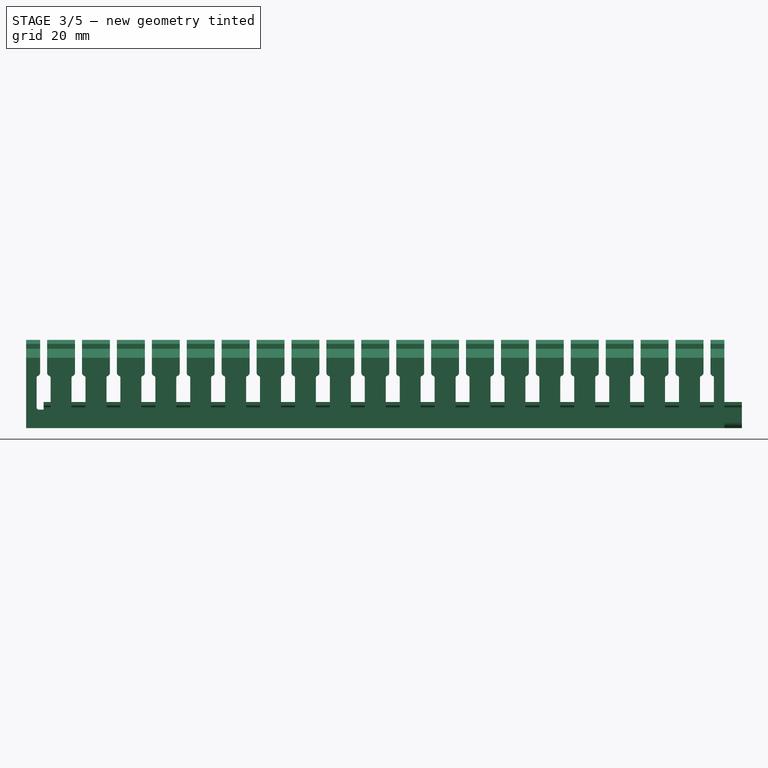
[diagram: stage 3 of 5 — front view after this stage's code; geometry added in this stage tinted green]
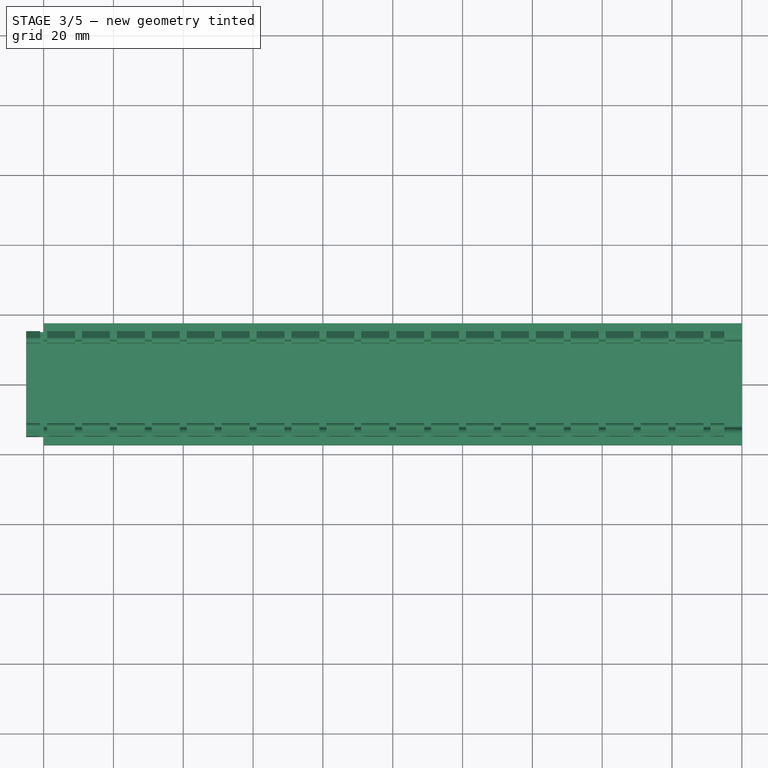
[diagram: stage 3 of 5 — top view after this stage's code; geometry added in this stage tinted green]
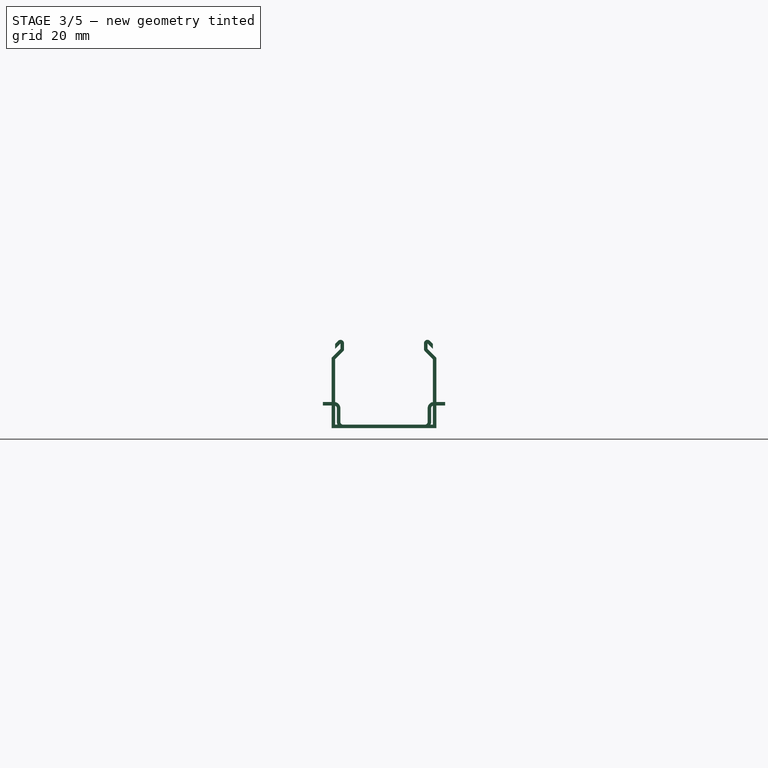
[diagram: stage 3 of 5 — right view after this stage's code; geometry added in this stage tinted green]
FEATURE [App::Point] Origin006  label="Origin007"
  Role = Origin
FEATURE [Sketcher::SketchObject] Sketch015
  ArcFitTolerance = 1e-06
  AttachmentSupport = -> [Pocket003]
  ExternalGeometry = -> [Pocket003]
  ExternalTypes = [0]
  FullyConstrained = true
  MakeInternals = false
  MapMode = 5
  Placement = pos=(0,-39,0) rot=(0.57735,0.57735,-0.57735;2.0944rad)
FEATURE [Sketcher::SketchObject] Sketch016  label="1"
  ArcFitTolerance = 1e-06
  AttachmentSupport = -> [Pocket005]
  ExternalTypes = [0]
  FullyConstrained = false
  MakeInternals = false
  MapMode = 5
  Placement = pos=(0,-9.8,0) rot=(0.57735,0.57735,-0.57735;2.0944rad)
  sketch-geometry (1):
    g0: GeomPoint X=-36.0042 Y=9.05405 Z=0
FEATURE [Sketcher::SketchObject] Sketch017  label="2"
  ArcFitTolerance = 1e-06
  AttachmentSupport = -> [Pocket005]
  ExternalTypes = [0]
  FullyConstrained = false
  MakeInternals = false
  MapMode = 5
  Placement = pos=(-4.3e-15,-9.8,0) rot=(0.57735,0.57735,-0.57735;2.0944rad)
  sketch-geometry (1):
    g0: GeomPoint X=37.2195 Y=9.13568 Z=0
FEATURE [PartDesign::Body] Body001  label="Q2"
  AllowCompound = false
  Group = -> [Sketch011,Pad001,Fillet001,Sketch012,Pocket003,Sketch015,Sketch013,Pocket004,Sketch014,Pocket005,Sketch016,Sketch017]
  Origin = -> Origin007
  Placement = pos=(-75,0,0) rot=(1,0,0;4.71239rad)
  Tip = -> Pocket005
FEATURE [Sketcher::SketchObject] Sketch018  label="2"
  ArcFitTolerance = 1e-06
  AttachmentSupport = -> [Part__Feature]
  ExternalTypes = [0]
  FullyConstrained = false
  MakeInternals = false
  MapMode = 5
  Placement = pos=(5.15,-7.19886,23.85) rot=(0,0,-1;1.5708rad)
  sketch-geometry (1):
    g0: GeomPoint X=-25 Y=-2.35166 Z=0
FEATURE [Sketcher::SketchObject] Sketch019  label="1"
  ArcFitTolerance = 1e-06
  AttachmentSupport = -> [Part__Feature]
  ExternalTypes = [0]
  FullyConstrained = false
  MakeInternals = false
  MapMode = 5
  Placement = pos=(5.15,-7.19886,23.85) rot=(0,0,-1;1.5708rad)
  sketch-geometry (1):
    g0: GeomPoint X=-37.2886 Y=-2.29159 Z=0
FEATURE [App::Part] UT_2_5_select  label="X01"
  Group = -> [Part__Feature,Sketch018,Sketch019]
  Origin = -> Origin005
  Placement = pos=(-138,-193.35,-6.85) rot=(0,0,1;0rad)
FEATURE [App::Point] Origin008  label="Origin009"
  Role = Origin
FEATURE [Part::Feature] Part__Feature001  label="UT_2.5-select001"
  AttacherType = Attacher::AttachEngine3D
  Placement = pos=(5.15,-7.19886,17.4678) rot=(0.552363,0.624332,0.552363;2.02535rad)
  shape: bbox 5.15 x 48 x 46.85 mm, 140 faces (baked)
FEATURE [Sketcher::SketchObject] Sketch020  label="2"
  ArcFitTolerance = 1e-06
  AttachmentSupport = -> [Part__Feature001]
  ExternalTypes = [0]
  FullyConstrained = false
  MakeInternals = false
  MapMode = 5
  Placement = pos=(5.15,-7.19886,23.85) rot=(0,0,-1;1.5708rad)
  sketch-geometry (1):
    g0: GeomPoint X=-25 Y=-2.35166 Z=0
FEATURE [Sketcher::SketchObject] Sketch021  label="1"
  ArcFitTolerance = 1e-06
  AttachmentSupport = -> [Part__Feature001]
  ExternalTypes = [0]
  FullyConstrained = false
  MakeInternals = false
  MapMode = 5
  Placement = pos=(5.15,-7.19886,23.85) rot=(0,0,-1;1.5708rad)
  sketch-geometry (1):
    g0: GeomPoint X=-37.2886 Y=-2.29159 Z=0
FEATURE [App::Part] UT_2_5_select001  label="X02"
  Group = -> [Part__Feature001,Sketch020,Sketch021]
  Origin = -> Origin009
  Placement = pos=(-132.85,-193.35,-6.85) rot=(0,0,1;0rad)
FEATURE [App::Point] Origin010  label="Origin011"
  Role = Origin
FEATURE [Part::Feature] Part__Feature002  label="UT_2.5-select002"
  AttacherType = Attacher::AttachEngine3D
  Placement = pos=(5.15,-7.19886,17.4678) rot=(0.552363,0.624332,0.552363;2.02535rad)
  shape: bbox 5.15 x 48 x 46.85 mm, 140 faces (baked)
FEATURE [Sketcher::SketchObject] Sketch022  label="2"
  ArcFitTolerance = 1e-06
  AttachmentSupport = -> [Part__Feature002]
  ExternalTypes = [0]
  FullyConstrained = false
  MakeInternals = false
  MapMode = 5
  Placement = pos=(5.15,-7.19886,23.85) rot=(0,0,-1;1.5708rad)
  sketch-geometry (1):
    g0: GeomPoint X=-25 Y=-2.35166 Z=0
FEATURE [Sketcher::SketchObject] Sketch023  label="1"
  ArcFitTolerance = 1e-06
  AttachmentSupport = -> [Part__Feature002]
  ExternalTypes = [0]
  FullyConstrained = false
  MakeInternals = false
  MapMode = 5
  Placement = pos=(5.15,-7.19886,23.85) rot=(0,0,-1;1.5708rad)
  sketch-geometry (1):
    g0: GeomPoint X=-37.2886 Y=-2.29159 Z=0
FEATURE [App::Part] UT_2_5_select002  label="X03"
  Group = -> [Part__Feature002,Sketch022,Sketch023]
  Origin = -> Origin011
  Placement = pos=(-127.7,-193.35,-6.85) rot=(0,0,1;0rad)
FEATURE [App::Point] Origin012  label="Origin013"
  Role = Origin
FEATURE [Part::Feature] Part__Feature003  label="UT_2.5-select003"
  AttacherType = Attacher::AttachEngine3D
  Placement = pos=(5.15,-7.19886,17.4678) rot=(0.552363,0.624332,0.552363;2.02535rad)
  shape: bbox 5.15 x 48 x 46.85 mm, 140 faces (baked)
FEATURE [Sketcher::SketchObject] Sketch024  label="2"
  ArcFitTolerance = 1e-06
  AttachmentSupport = -> [Part__Feature003]
  ExternalTypes = [0]
  FullyConstrained = false
  MakeInternals = false
  MapMode = 5
  Placement = pos=(5.15,-7.19886,23.85) rot=(0,0,-1;1.5708rad)
  sketch-geometry (1):
    g0: GeomPoint X=-25 Y=-2.35166 Z=0
FEATURE [Sketcher::SketchObject] Sketch025  label="1"
  ArcFitTolerance = 1e-06
  AttachmentSupport = -> [Part__Feature003]
  ExternalTypes = [0]
  FullyConstrained = false
  MakeInternals = false
  MapMode = 5
  Placement = pos=(5.15,-7.19886,23.85) rot=(0,0,-1;1.5708rad)
  sketch-geometry (1):
    g0: GeomPoint X=-37.2886 Y=-2.29159 Z=0
FEATURE [App::Part] UT_2_5_select003  label="X04"
  Group = -> [Part__Feature003,Sketch024,Sketch025]
  Origin = -> Origin013
  Placement = pos=(-122.55,-193.35,-6.85) rot=(0,0,1;0rad)
FEATURE [Sketcher::SketchObject] Sketch026
  ArcFitTolerance = 1e-06
  AttachmentSupport = -> [YZ_Plane007]
  ExternalTypes = [0]
  FullyConstrained = true
  MakeInternals = false
  MapMode = 5
  Placement = pos=(0,0,0) rot=(0.57735,0.57735,0.57735;2.0944rad)
  sketch-geometry (20):
    g0: LineSegment StartX=-17.5 StartY=6.5 StartZ=0 EndX=-17.5 EndY=7.5 EndZ=0
    g1: LineSegment StartX=-17.5 StartY=7.5 StartZ=0 EndX=-14.3 EndY=7.5 EndZ=0
    g2: ArcOfCircle CenterX=-14.3 CenterY=5.7 CenterZ=0 NormalX=0 NormalY=0 NormalZ=1 AngleXU=0 Radius=1.8 StartAngle=1e-16 EndAngle=1.5708
    g3: LineSegment StartX=-12.5 StartY=5.7 StartZ=0 EndX=-12.5 EndY=1.8 EndZ=0
    g4: LineSegment StartX=-11.7 StartY=1 StartZ=0 EndX=11.7 EndY=1 EndZ=0
    g5: LineSegment StartX=12.5 StartY=1.8 StartZ=0 EndX=12.5 EndY=5.7 EndZ=0
    g6: ArcOfCircle CenterX=14.3 CenterY=5.7 CenterZ=0 NormalX=0 NormalY=0 NormalZ=1 AngleXU=0 Radius=1.8 StartAngle=1.5708 EndAngle=3.14159
    g7: LineSegment StartX=14.3 StartY=7.5 StartZ=0 EndX=17.5 EndY=7.5 EndZ=0
    g8: LineSegment StartX=17.5 StartY=7.5 StartZ=0 EndX=17.5 EndY=6.5 EndZ=0
    g9: LineSegment StartX=17.5 StartY=6.5 StartZ=0 EndX=14.3 EndY=6.5 EndZ=0
    g10: ArcOfCircle CenterX=14.3 CenterY=5.7 CenterZ=0 NormalX=0 NormalY=0 NormalZ=1 AngleXU=0 Radius=0.8 StartAngle=1.5708 EndAngle=3.14159
    g11: LineSegment StartX=13.5 StartY=5.7 StartZ=0 EndX=13.5 EndY=1.8 EndZ=0
    g12: LineSegment StartX=11.7 StartY=7e-16 StartZ=0 EndX=-11.7 EndY=7e-16 EndZ=0
    g13: LineSegment StartX=-13.5 StartY=1.8 StartZ=0 EndX=-13.5 EndY=5.7 EndZ=0
    g14: ArcOfCircle CenterX=-14.3 CenterY=5.7 CenterZ=0 NormalX=0 NormalY=0 NormalZ=1 AngleXU=0 Radius=0.8 StartAngle=0 EndAngle=1.5708
    g15: LineSegment StartX=-14.3 StartY=6.5 StartZ=0 EndX=-17.5 EndY=6.5 EndZ=0
    g16: ArcOfCircle CenterX=-11.7 CenterY=1.8 CenterZ=0 NormalX=0 NormalY=0 NormalZ=1 AngleXU=0 Radius=0.8 StartAngle=3.14159 EndAngle=4.71239
    g17: ArcOfCircle CenterX=11.7 CenterY=1.8 CenterZ=0 NormalX=0 NormalY=0 NormalZ=1 AngleXU=0 Radius=0.8 StartAngle=4.71239 EndAngle=6.28319
    g18: ArcOfCircle CenterX=11.7 CenterY=1.8 CenterZ=0 NormalX=0 NormalY=0 NormalZ=1 AngleXU=0 Radius=1.8 StartAngle=4.71239 EndAngle=6.28319
    g19: ArcOfCircle CenterX=-11.7 CenterY=1.8 CenterZ=0 NormalX=0 NormalY=0 NormalZ=1 AngleXU=0 Radius=1.8 StartAngle=3.14159 EndAngle=4.71239
  constraints (47):
    c: Vertical(g0)
    c: Coincident(g0,g1)
    c: Horizontal(g1)
    c: Tangent(g1,g2) = 1.5708
    c: Tangent(g2,g3) = 1.5708
    c: Tangent(g5,g6) = 1.5708
    c: Tangent(g6,g7) = 1.5708
    c: Coincident(g7,g8)
    c: Vertical(g8)
    c: Coincident(g8,g9)
    c: Horizontal(g9)
    c: Tangent(g9,g10) = -1.5708
    c: Tangent(g10,g11) = -1.5708
    c: Horizontal(g12)
    c: Tangent(g13,g14) = -1.5708
    c: Tangent(g14,g15) = -1.5708
    c: Coincident(g15,g0)
    c: Vertical(g11)
    c: Vertical(g5)
    c: Vertical(g3)
    c: Vertical(g13)
    c: Equal(g0,g8)
    c: Equal(g1,g7)
    c: Horizontal(g7)
    c: Horizontal(g6,g1)
    c: Coincident(g6,g10)
    c: Coincident(g2,g14)
    c: Equal(g14,g10)
    c: Radius(g14) = 0.8
    c: DistanceX(g0,g7) = 35
    c: Tangent(g3,g16) = -1.5708
    c: Tangent(g4,g16) = -1.5708
    c: Tangent(g4,g17) = -1.5708
    c: Tangent(g5,g17) = -1.5708
    c: Tangent(g11,g18) = 1.5708
    c: Tangent(g12,g18) = 1.5708
    c: Tangent(g12,g19) = 1.5708
    c: Tangent(g13,g19) = 1.5708
    c: Coincident(g16,g19)
    c: Coincident(g17,g18)
    c: Equal(g17,g16)
    c: Radius(g17) = 0.8
    c: Distance(g4,g12) = 1
    c: DistanceX(g13,g11) = 27
    c: PointOnObject(g12,g-1)
    c: DistanceY(g12,g0) = 7.5
    c: Symmetric(g4,g4,g-2)
FEATURE [PartDesign::Pad] Pad002
  Direction = (1,0,0)
  Length = 200
  Length2 = 10
  Placement = pos=(0,0,0) rot=(1,1,1;2.0944rad)
  Profile = -> Sketch026
  ReferenceAxis = -> Sketch026 [N_Axis]
  Refine = true
  Suppressed = false
  Type = 0
FEATURE [App::Point] Origin014  label="Origin015"
  Role = Origin
FEATURE [PartDesign::Body] Body002  label="DIN_Rail"
  AllowCompound = false
  Group = -> [Sketch026,Pad002]
  Origin = -> Origin015
  Placement = pos=(-155,-0.35,-7.5) rot=(0,0,1;0rad)
  Tip = -> Pad002
FEATURE [App::Point] Origin017  label="Origin018"
  Role = Origin
FEATURE [Sketcher::SketchObject] Sketch027
  ArcFitTolerance = 1e-06
  AttachmentSupport = -> [YZ_Plane008]
  ExternalTypes = [0]
  FullyConstrained = false
  MakeInternals = false
  MapMode = 5
  Placement = pos=(0,0,0) rot=(0.57735,0.57735,0.57735;2.0944rad)
  sketch-geometry (18):
    g0: LineSegment StartX=-14 StartY=22.7373 StartZ=0 EndX=-14 EndY=24.1515 EndZ=0
    g1: LineSegment StartX=-14 StartY=24.1515 StartZ=0 EndX=-13.1515 EndY=25 EndZ=0
    g2: ArcOfCircle CenterX=-12.4444 CenterY=24.2929 CenterZ=0 NormalX=0 NormalY=0 NormalZ=1 AngleXU=0 Radius=1 StartAngle=-9e-16 EndAngle=2.35619
    g3: LineSegment StartX=-11.4444 StartY=24.2929 StartZ=0 EndX=-11.4444 EndY=22.5383 EndZ=0
    g4: ArcOfCircle CenterX=-11.9641 CenterY=22.5383 CenterZ=0 NormalX=0 NormalY=0 NormalZ=1 AngleXU=0 Radius=0.519783 StartAngle=5.49779 EndAngle=6.28319
    g5: LineSegment StartX=-11.5966 StartY=22.1708 StartZ=0 EndX=-14 EndY=19.7674 EndZ=0
    g6: LineSegment StartX=-14 StartY=19.7674 StartZ=0 EndX=-14 EndY=1 EndZ=0
    g7: LineSegment StartX=-14 StartY=1 StartZ=0 EndX=0 EndY=1 EndZ=0
    g8: LineSegment StartX=-14 StartY=22.7373 StartZ=0 EndX=-12.4444 EndY=24.2929 EndZ=0
    g9: LineSegment StartX=-12.4444 StartY=24.2929 StartZ=0 EndX=-12.4444 EndY=22.7373 EndZ=0
    g10: LineSegment StartX=-12.4444 StartY=22.7373 StartZ=0 EndX=-15 EndY=20.1816 EndZ=0
    g11: LineSegment StartX=-15 StartY=20.1816 StartZ=0 EndX=-15 EndY=0 EndZ=0
    g12: LineSegment StartX=-15 StartY=0 StartZ=0 EndX=0 EndY=0 EndZ=0
    g13: LineSegment [constr] StartX=-11.5966 StartY=22.1708 StartZ=0 EndX=-12.3037 EndY=22.8779 EndZ=0
    g14: LineSegment [constr] StartX=-12.4444 StartY=24.2929 StartZ=0 EndX=-11.4444 EndY=24.2929 EndZ=0
    g15: LineSegment [constr] StartX=-20.063 StartY=15.1186 StartZ=0 EndX=-20.8409 EndY=15.8964 EndZ=0
    g16: LineSegment [constr] StartX=-14 StartY=24.1515 StartZ=0 EndX=-13.2929 EndY=23.4444 EndZ=0
    g17: LineSegment StartX=0 StartY=0 StartZ=0 EndX=0 EndY=1 EndZ=0
  constraints (50):
    c: Vertical(g0)
    c: Coincident(g0,g1)
    c: Tangent(g1,g2) = 1.5708
    c: Coincident(g3,g2)
    c: Vertical(g3)
    c: Tangent(g3,g4) = 1.5708
    c: Tangent(g4,g5) = 1.5708
    c: Coincident(g5,g6)
    c: Vertical(g6)
    c: Coincident(g6,g7)
    c: Horizontal(g7)
    c: Coincident(g0,g8)
    c: Coincident(g8,g9)
    c: Vertical(g9)
    c: Coincident(g9,g10)
    c: Coincident(g10,g11)
    c: Vertical(g11)
    c: Coincident(g11,g12)
    c: Horizontal(g12)
    c: DistanceX(g11,g6) = 1
    c: DistanceX(g10,g0) = 1
    c: Parallel(g10,g5)
    c: Parallel(g8,g1)
    c: Tangent(g3,g2,g2) = 1.5708
    c: Coincident(g13,g4)
    c: PointOnObject(g13,g10)
    c: Perpendicular(g13,g10)
    c: Distance(g13,g13) = 1
    c: Coincident(g14,g8)
    c: PointOnObject(g14,g3)
    c: Horizontal(g14)
    c: DistanceX(g14,g14) = 1
    c: Angle(g6,g5) = 2.35619
    c: Angle(g8,g9) = 0.785398
    c: PointOnObject(g15,g10)
    c: Perpendicular(g15,g8) = 4.71239
    c: Distance(g15,g15) = 1.1
    c: Coincident(g16,g0)
    c: PointOnObject(g16,g8)
    c: Perpendicular(g8,g16)
    c: Coincident(g2,g8)
    c: PointOnObject(g9,g4)
    c: Horizontal(g0,g9)
    c: Coincident(g17,g12)
    c: Coincident(g17,g7)
    c: Vertical(g17)
    c: DistanceX(g12,g12) = 15
    c: DistanceY(g11,g1) = 25
    c: DistanceY(g17,g17) = 1
    c: Coincident(g12,g-1)
FEATURE [PartDesign::Pad] Pad003
  Direction = (1,0,0)
  Length = 5
  Length2 = 10
  Placement = pos=(0,0,0) rot=(1,1,1;2.0944rad)
  Profile = -> Sketch027
  ReferenceAxis = -> Sketch027 [N_Axis]
  Refine = true
  Suppressed = false
  Type = 0
FEATURE [Sketcher::SketchObject] Sketch028
  ArcFitTolerance = 1e-06
  AttachmentSupport = -> [Pad003]
  ExternalGeometry = -> [Pad003]
  ExternalTypes = [0]
  FullyConstrained = false
  MakeInternals = false
  MapMode = 5
  Placement = pos=(-3.3e-15,-15,0) rot=(0.57735,0.57735,-0.57735;2.0944rad)
  sketch-geometry (8):
    g0: LineSegment StartX=-25.2929 StartY=-5.1e-15 StartZ=0 EndX=-25.2929 EndY=1 EndZ=0
    g1: LineSegment StartX=-25.2929 StartY=1 StartZ=0 EndX=-15.8641 EndY=1 EndZ=0
    g2: ArcOfCircle CenterX=-15.8641 CenterY=1.9653 CenterZ=0 NormalX=0 NormalY=0 NormalZ=1 AngleXU=0 Radius=0.9653 StartAngle=4.71239 EndAngle=5.95836
    g3: ArcOfCircle CenterX=-14.4721 CenterY=1.49656 CenterZ=0 NormalX=0 NormalY=0 NormalZ=1 AngleXU=0 Radius=0.503444 StartAngle=1.5708 EndAngle=2.81676
    g4: LineSegment StartX=-14.4721 StartY=2 StartZ=0 EndX=-5.93849 EndY=2 EndZ=0
    g5: ArcOfCircle CenterX=-5.93849 CenterY=1.35441 CenterZ=0 NormalX=0 NormalY=0 NormalZ=1 AngleXU=0 Radius=0.645594 StartAngle=2e-16 EndAngle=1.5708
    g6: LineSegment StartX=-5.29289 StartY=1.35441 StartZ=0 EndX=-5.29289 EndY=-5.1e-15 EndZ=0
    g7: LineSegment StartX=-5.29289 StartY=-5.1e-15 StartZ=0 EndX=-25.2929 EndY=-5.1e-15 EndZ=0
  constraints (17):
    c: Coincident(g0,g-10)
    c: PointOnObject(g0,g-9)
    c: Coincident(g0,g1)
    c: Horizontal(g1)
    c: Tangent(g1,g2) = -1.5708
    c: Tangent(g2,g3) = 1.5708
    c: Tangent(g3,g4) = 1.5708
    c: Tangent(g4,g5) = 1.5708
    c: Tangent(g5,g6) = 1.5708
    c: Coincident(g6,g7)
    c: Coincident(g7,g0)
    c: Horizontal(g7)
    c: Horizontal(g4)
    c: DistanceY(g0,g0) = 1
    c: DistanceY(g0,g3) = 2
    c: Vertical(g6)
    c: DistanceX(g7,g7) = 20
FEATURE [PartDesign::Pocket] Pocket006
  BaseFeature = -> Pad003
  Direction = (0,1,0)
  Length = 5
  Length2 = 5
  Placement = pos=(0,0,0) rot=(1,1,1;2.0944rad)
  Profile = -> Sketch028
  ReferenceAxis = -> Sketch028 [N_Axis]
  Refine = true
  Suppressed = false
  Type = 1
FEATURE [PartDesign::Mirrored] Mirrored
  BaseFeature = -> Pocket006
  MirrorPlane = -> YZ_Plane008
  Placement = pos=(0,0,0) rot=(1,1,1;2.0944rad)
  Refine = true
  Suppressed = false
  TransformMode = 1
FEATURE [PartDesign::Mirrored] Mirrored001
  BaseFeature = -> Mirrored
  MirrorPlane = -> XZ_Plane008
  Placement = pos=(0,0,0) rot=(1,1,1;2.0944rad)
  Refine = true
  Suppressed = false
  TransformMode = 1
FEATURE [PartDesign::LinearPattern] LinearPattern001
  BaseFeature = -> Mirrored001
  Direction = -> X_Axis008
  Length = 190
  Mode = 1
  Occurrences = 20
  Offset = 10
  Placement = pos=(0,0,0) rot=(1,1,1;2.0944rad)
  Refine = true
  Suppressed = false
  TransformMode = 1
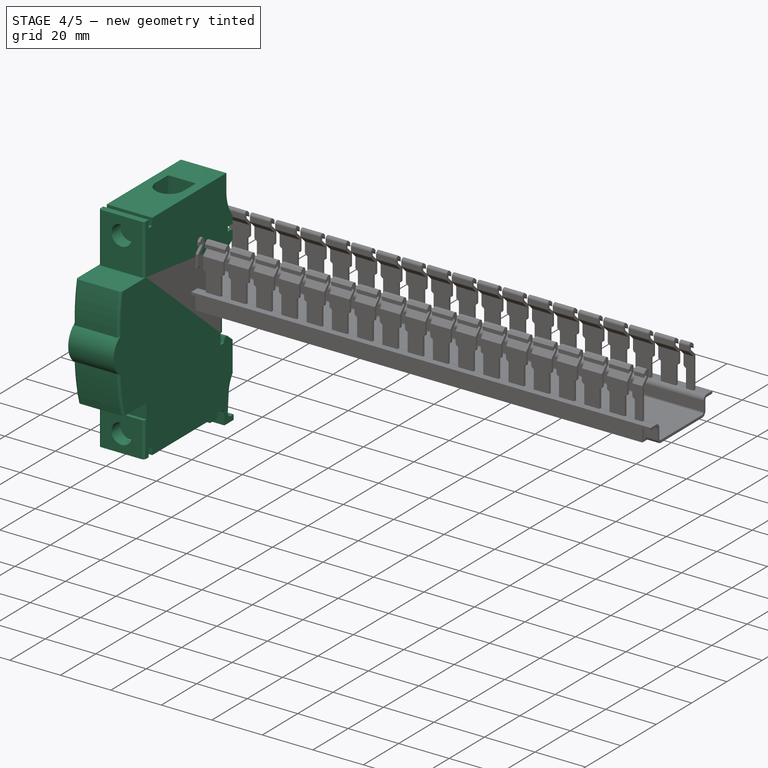
[diagram: stage 4 of 5 — iso view after this stage's code; geometry added in this stage tinted green]
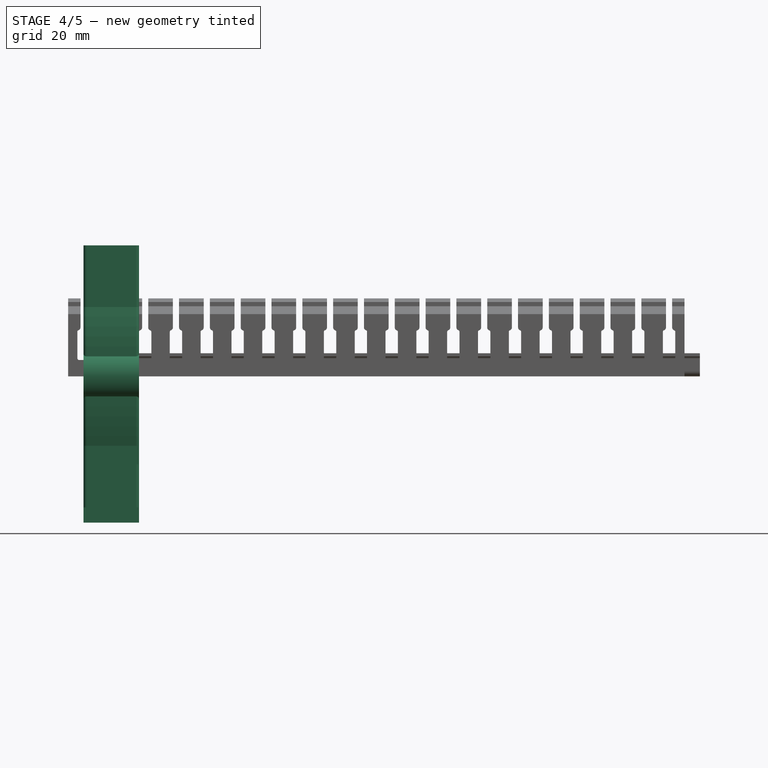
[diagram: stage 4 of 5 — front view after this stage's code; geometry added in this stage tinted green]
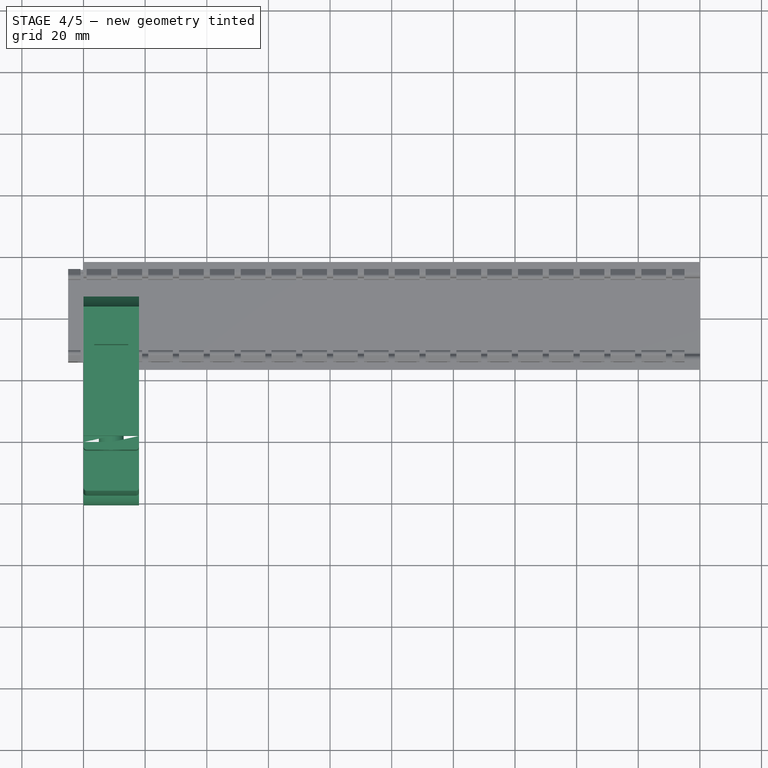
[diagram: stage 4 of 5 — top view after this stage's code; geometry added in this stage tinted green]
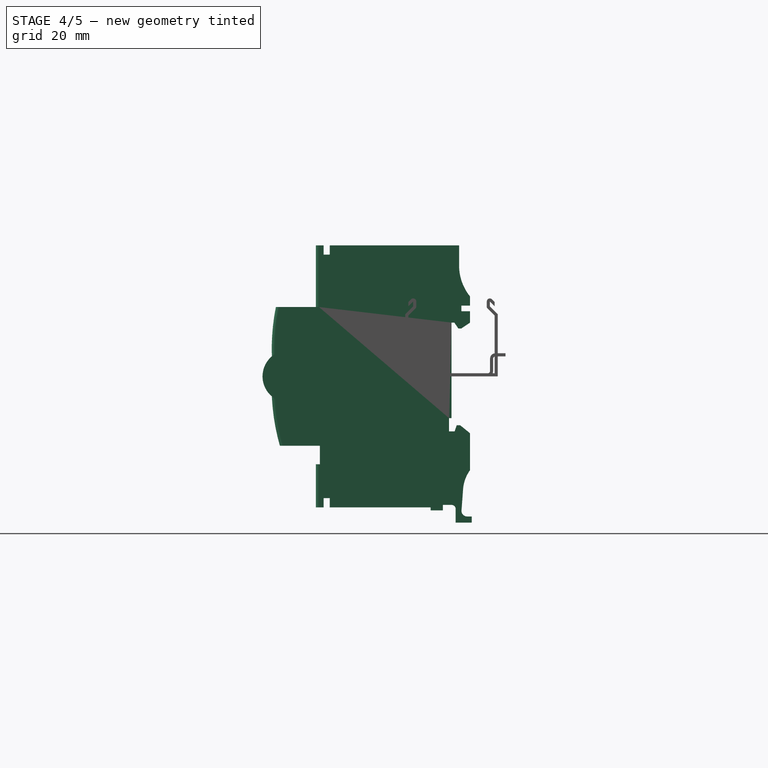
[diagram: stage 4 of 5 — right view after this stage's code; geometry added in this stage tinted green]
FEATURE [App::Point] Origin001  label="Origin"
  Role = Origin
FEATURE [Sketcher::SketchObject] Sketch002
  ArcFitTolerance = 1e-06
  AttachmentSupport = -> [Pocket]
  ExternalGeometry = -> [Pocket]
  ExternalTypes = [0]
  FullyConstrained = true
  MakeInternals = false
  MapMode = 5
  Placement = pos=(0,-39,0) rot=(0.57735,0.57735,-0.57735;2.0944rad)
FEATURE [Sketcher::SketchObject] Sketch005  label="2"
  ArcFitTolerance = 1e-06
  AttachmentSupport = -> [LinearPattern]
  ExternalTypes = [0]
  FullyConstrained = false
  MakeInternals = false
  MapMode = 5
  Placement = pos=(-4.3e-15,-9.8,0) rot=(0.57735,0.57735,-0.57735;2.0944rad)
  sketch-geometry (1):
    g0: GeomPoint X=36.8674 Y=8.95761 Z=0
FEATURE [Sketcher::SketchObject] Sketch006  label="4"
  ArcFitTolerance = 1e-06
  AttachmentSupport = -> [LinearPattern]
  ExternalTypes = [0]
  FullyConstrained = false
  MakeInternals = false
  MapMode = 5
  Placement = pos=(-4.3e-15,-9.8,0) rot=(0.57735,0.57735,-0.57735;2.0944rad)
  sketch-geometry (1):
    g0: GeomPoint X=36.732 Y=26.6251 Z=0
FEATURE [Sketcher::SketchObject] Sketch007  label="6"
  ArcFitTolerance = 1e-06
  AttachmentSupport = -> [LinearPattern]
  ExternalTypes = [0]
  FullyConstrained = false
  MakeInternals = false
  MapMode = 5
  Placement = pos=(-4.3e-15,-9.8,0) rot=(0.57735,0.57735,-0.57735;2.0944rad)
  sketch-geometry (1):
    g0: GeomPoint X=36.9065 Y=44.5184 Z=0
FEATURE [Sketcher::SketchObject] Sketch008  label="1"
  ArcFitTolerance = 1e-06
  AttachmentSupport = -> [LinearPattern]
  ExternalTypes = [0]
  FullyConstrained = false
  MakeInternals = false
  MapMode = 5
  Placement = pos=(0,-9.8,0) rot=(0.57735,0.57735,-0.57735;2.0944rad)
  sketch-geometry (1):
    g0: GeomPoint X=-36.1732 Y=8.59876 Z=0
FEATURE [Sketcher::SketchObject] Sketch009  label="3"
  ArcFitTolerance = 1e-06
  AttachmentSupport = -> [LinearPattern]
  ExternalTypes = [0]
  FullyConstrained = false
  MakeInternals = false
  MapMode = 5
  Placement = pos=(0,-9.8,0) rot=(0.57735,0.57735,-0.57735;2.0944rad)
  sketch-geometry (1):
    g0: GeomPoint X=-36.0156 Y=26.7588 Z=0
FEATURE [Sketcher::SketchObject] Sketch010  label="5"
  ArcFitTolerance = 1e-06
  AttachmentSupport = -> [LinearPattern]
  ExternalTypes = [0]
  FullyConstrained = false
  MakeInternals = false
  MapMode = 5
  Placement = pos=(0,-9.8,0) rot=(0.57735,0.57735,-0.57735;2.0944rad)
  sketch-geometry (1):
    g0: GeomPoint X=-35.9772 Y=44.6691 Z=0
FEATURE [PartDesign::Body] Body  label="Q1"
  AllowCompound = false
  Group = -> [Sketch,Pad,Fillet,Sketch001,Pocket,Sketch002,Sketch003,Pocket001,Sketch004,Pocket002,LinearPattern,Sketch005,Sketch006,Sketch007,Sketch008,Sketch009,Sketch010]
  Origin = -> Origin
  Placement = pos=(-133,-1.42e-14,-2.4e-14) rot=(1,0,0;4.71239rad)
  Tip = -> LinearPattern
FEATURE [Sketcher::SketchObject] Sketch011
  ArcFitTolerance = 1e-06
  AttachmentSupport = -> [YZ_Plane003]
  ExternalTypes = [0]
  FullyConstrained = true
  MakeInternals = false
  MapMode = 5
  Placement = pos=(0,0,0) rot=(0.57735,0.57735,0.57735;2.0944rad)
  sketch-geometry (50):
    g0: LineSegment StartX=-44 StartY=42.5 StartZ=0 EndX=-41.5 EndY=42.5 EndZ=0
    g1: LineSegment StartX=-41.5 StartY=42.5 StartZ=0 EndX=-41.5 EndY=39.5 EndZ=0
    g2: LineSegment StartX=-41.5 StartY=39.5 StartZ=0 EndX=-39.5 EndY=39.5 EndZ=0
    g3: LineSegment StartX=-39.5 StartY=39.5 StartZ=0 EndX=-39.5 EndY=42.5 EndZ=0
    g4: LineSegment StartX=-39.5 StartY=42.5 StartZ=0 EndX=2.4498 EndY=42.5 EndZ=0
    g5: LineSegment StartX=2.4498 StartY=42.5 StartZ=0 EndX=2.4498 EndY=36 EndZ=0
    g6: ArcOfCircle CenterX=18.4498 CenterY=36 CenterZ=0 NormalX=0 NormalY=0 NormalZ=1 AngleXU=0 Radius=16 StartAngle=3.14159 EndAngle=3.82073
    g7: LineSegment StartX=6 StartY=25.95 StartZ=0 EndX=6 EndY=22.95 EndZ=0
    g8: LineSegment StartX=6 StartY=22.95 StartZ=0 EndX=3.2 EndY=22.95 EndZ=0
    g9: LineSegment StartX=3.2 StartY=22.95 StartZ=0 EndX=3.2 EndY=21.15 EndZ=0
    g10: LineSegment StartX=3.2 StartY=21.15 StartZ=0 EndX=6 EndY=21.15 EndZ=0
    g11: LineSegment StartX=6 StartY=21.15 StartZ=0 EndX=6 EndY=17.45 EndZ=0
    g12: LineSegment StartX=6 StartY=17.45 StartZ=0 EndX=3.2 EndY=15.55 EndZ=0
    g13: LineSegment StartX=3.2 StartY=15.55 StartZ=0 EndX=2.2 EndY=15.55 EndZ=0
    g14: LineSegment StartX=2.2 StartY=15.55 StartZ=0 EndX=0.9 EndY=17.45 EndZ=0
    g15: LineSegment StartX=0.9 StartY=17.45 StartZ=0 EndX=1e-16 EndY=17.45 EndZ=0
    g16: LineSegment StartX=1e-16 StartY=17.45 StartZ=0 EndX=1e-16 EndY=-13.55 EndZ=0
    g17: LineSegment StartX=1e-16 StartY=-13.55 StartZ=0 EndX=-0.8 EndY=-13.55 EndZ=0
    g18: LineSegment StartX=-0.8 StartY=-13.55 StartZ=0 EndX=-0.8 EndY=-17.85 EndZ=0
    g19: LineSegment StartX=-0.8 StartY=-17.85 StartZ=0 EndX=1 EndY=-17.85 EndZ=0
    g20: LineSegment StartX=1 StartY=-17.85 StartZ=0 EndX=1.7 EndY=-15.85 EndZ=0
    g21: LineSegment StartX=1.7 StartY=-15.85 StartZ=0 EndX=2.8 EndY=-15.85 EndZ=0
    g22: LineSegment StartX=2.8 StartY=-15.85 StartZ=0 EndX=6 EndY=-18.45 EndZ=0
    g23: LineSegment StartX=6 StartY=-18.45 StartZ=0 EndX=6 EndY=-30.45 EndZ=0
    g24: ArcOfCircle CenterX=15.7189 CenterY=-37.4887 CenterZ=0 NormalX=0 NormalY=0 NormalZ=1 AngleXU=0 Radius=12 StartAngle=2.51479 EndAngle=3.06747
    g25: LineSegment StartX=3.75184 StartY=-36.6 StartZ=0 EndX=3.23944 EndY=-43.5 EndZ=0
    g26: ArcOfCircle CenterX=5.05 CenterY=-43.6345 CenterZ=0 NormalX=0 NormalY=0 NormalZ=1 AngleXU=0 Radius=1.81555 StartAngle=3.06747 EndAngle=4.71239
    g27: LineSegment StartX=5.05 StartY=-45.45 StartZ=0 EndX=6.55 EndY=-45.45 EndZ=0
    g28: LineSegment StartX=6.55 StartY=-45.45 StartZ=0 EndX=6.55 EndY=-47.45 EndZ=0
    g29: LineSegment StartX=6.55 StartY=-47.45 StartZ=0 EndX=1.35 EndY=-47.45 EndZ=0
    g30: LineSegment StartX=1.35 StartY=-47.45 StartZ=0 EndX=1.35 EndY=-43.05 EndZ=0
    g31: ArcOfCircle CenterX=0 CenterY=-43.05 CenterZ=0 NormalX=0 NormalY=0 NormalZ=1 AngleXU=0 Radius=1.35 StartAngle=0 EndAngle=1.5708
    g32: LineSegment StartX=1e-16 StartY=-41.7 StartZ=0 EndX=-2.8 EndY=-41.7 EndZ=0
    g33: LineSegment StartX=-2.8 StartY=-41.7 StartZ=0 EndX=-2.8 EndY=-43.5 EndZ=0
    g34: LineSegment StartX=-2.8 StartY=-43.5 StartZ=0 EndX=-6.8 EndY=-43.5 EndZ=0
    g35: LineSegment StartX=-6.8 StartY=-43.5 StartZ=0 EndX=-6.8 EndY=-42.5 EndZ=0
    g36: LineSegment StartX=-6.8 StartY=-42.5 StartZ=0 EndX=-39.5 EndY=-42.5 EndZ=0
    g37: LineSegment StartX=-39.5 StartY=-42.5 StartZ=0 EndX=-39.5 EndY=-39.5 EndZ=0
    g38: LineSegment StartX=-39.5 StartY=-39.5 StartZ=0 EndX=-41.5 EndY=-39.5 EndZ=0
    g39: LineSegment StartX=-41.5 StartY=-39.5 StartZ=0 EndX=-41.5 EndY=-42.5 EndZ=0
    g40: LineSegment StartX=-41.5 StartY=-42.5 StartZ=0 EndX=-44 EndY=-42.5 EndZ=0
    g41: LineSegment StartX=-44 StartY=-42.5 StartZ=0 EndX=-44 EndY=-28.5 EndZ=0
    g42: LineSegment StartX=-44 StartY=-28.5 StartZ=0 EndX=-42.7 EndY=-28.5 EndZ=0
    g43: LineSegment StartX=-42.7 StartY=-28.5 StartZ=0 EndX=-42.7 EndY=-22.5 EndZ=0
    g44: LineSegment StartX=-42.7 StartY=-22.5 StartZ=0 EndX=-55.7 EndY=-22.5 EndZ=0
    g45: ArcOfCircle CenterX=-52.8228 CenterY=1e-15 CenterZ=0 NormalX=0 NormalY=0 NormalZ=1 AngleXU=0 Radius=8.5 StartAngle=2.27101 EndAngle=4.01218
    g46: ArcOfCircle CenterX=11.6599 CenterY=8.86857 CenterZ=0 NormalX=0 NormalY=0 NormalZ=1 AngleXU=0 Radius=70 StartAngle=2.94561 EndAngle=3.17544
    g47: LineSegment StartX=-57 StartY=22.5 StartZ=0 EndX=-44 EndY=22.5 EndZ=0
    g48: LineSegment StartX=-44 StartY=22.5 StartZ=0 EndX=-44 EndY=42.5 EndZ=0
    g49: ArcOfCircle CenterX=11.629 CenterY=-3.34779 CenterZ=0 NormalX=0 NormalY=0 NormalZ=1 AngleXU=0 Radius=70 StartAngle=3.18664 EndAngle=3.41873
  constraints (151):
    c: Horizontal(g0)
    c: Coincident(g0,g1)
    c: Vertical(g1)
    c: Coincident(g1,g2)
    c: Horizontal(g2)
    c: Coincident(g2,g3)
    c: Vertical(g3)
    c: Coincident(g3,g4)
    c: Horizontal(g4)
    c: Coincident(g4,g5)
    c: Vertical(g5)
    c: Tangent(g5,g6) = -1.5708
    c: Coincident(g6,g7)
    c: Coincident(g7,g8)
    c: Horizontal(g8)
    c: Coincident(g8,g9)
    c: Vertical(g9)
    c: Coincident(g9,g10)
    c: Horizontal(g10)
    c: Coincident(g10,g11)
    c: Vertical(g11)
    c: Coincident(g11,g12)
    c: Coincident(g12,g13)
    c: Horizontal(g13)
    c: Coincident(g13,g14)
    c: Coincident(g14,g15)
    c: Horizontal(g15)
    c: Coincident(g15,g16)
    c: Vertical(g16)
    c: Coincident(g16,g17)
    c: Coincident(g17,g18)
    c: Vertical(g18)
    c: Coincident(g18,g19)
    c: Coincident(g19,g20)
    c: Coincident(g20,g21)
    c: Horizontal(g21)
    c: Coincident(g21,g22)
    c: Coincident(g22,g23)
    c: Vertical(g23)
    c: Coincident(g24,g25)
    c: Tangent(g25,g26) = -1.5708
    c: Tangent(g26,g27) = -1.5708
    c: Coincident(g27,g28)
    c: Coincident(g28,g29)
    c: Horizontal(g29)
    c: Coincident(g29,g30)
    c: Vertical(g30)
    c: Tangent(g30,g31) = -1.5708
    c: Horizontal(g32)
    c: Coincident(g32,g33)
    c: Vertical(g33)
    c: Coincident(g33,g34)
    c: Horizontal(g34)
    c: Coincident(g34,g35)
    c: Vertical(g35)
    c: Coincident(g35,g36)
    c: Horizontal(g36)
    c: Coincident(g36,g37)
    c: Vertical(g37)
    c: Coincident(g37,g38)
    c: Horizontal(g38)
    c: Coincident(g38,g39)
    c: Vertical(g39)
    c: Coincident(g39,g40)
    c: Horizontal(g40)
    c: Coincident(g40,g41)
    c: Vertical(g41)
    c: Coincident(g41,g42)
    c: Horizontal(g42)
    c: Coincident(g42,g43)
    c: Vertical(g43)
    c: Coincident(g43,g44)
    c: Horizontal(g44)
    c: Coincident(g46,g47)
    c: Horizontal(g47)
    c: Coincident(g47,g48)
    c: Coincident(g48,g0)
    c: Vertical(g48)
    c: Coincident(g49,g44)
    c: Equal(g44,g47)
    c: DistanceY(g41,g41) = 14
    c: Horizontal(g36,g39)
    c: Vertical(g38,g1)
    c: Distance(g42,g42) = 1.3
    c: Horizontal(g0,g3)
    c: Equal(g3,g37)
    c: Equal(g38,g2)
    c: Radius(g6) = 16
    c: Vertical(g7)
    c: Vertical(g10,g7)
    c: Distance(g9,g9) = 1.8
    c: DistanceY(g5,g5) = 6.5
    c: DistanceY(g7,g7) = 3
    c: Distance(g11,g11) = 3.7
    c: DistanceX(g12,g11) = 2.8
    c: Distance(g13,g13) = 1
    c: DistanceX(g14,g14) = 1.3
    c: DistanceY(g33,g4) = 86
    c: Horizontal(g17)
    c: DistanceY(g16,g16) = 31
    c: DistanceY(g18,g18) = 4.3
    c: Horizontal(g19)
    c: Vertical(g22,g11)
    c: DistanceX(g15,g11) = 6
    c: DistanceX(g0,g15) = 44
    c: Vertical(g31,g16)
    c: Tangent(g31,g32) = -1.5708
    c: Vertical(g28)
    c: Horizontal(g27)
    c: Distance(g28,g28) = 2
    c: Distance(g30,g30) = 4.4
    c: DistanceX(g34,g34) = 4
    c: Distance(g19,g19) = 1.8
    c: Distance(g21,g21) = 1.1
    c: DistanceX(g22,g22) = 3.2
    c: DistanceX(g20,g20) = 0.7
    c: Coincident(g24,g23)
    c: Distance(g33,g33) = 1.8
    c: Distance(g27,g27) = 1.5
    c: DistanceY(g23,g23) = 12
    c: DistanceY(g22,g22) = 2.6
    c: DistanceY(g44,g46) = 45
    c: DistanceX(g29,g29) = 5.2
    c: DistanceX(g40,g40) = 2.5
    c: DistanceX(g38,g38) = 2
    c: Radius(g24) = 12
    c: Tangent(g25,g24,g24) = -1.5708
    c: DistanceY(g48,g48) = 20
    c: DistanceY(g40,g44) = 20
    c: Horizontal(g33,g25)
    c: DistanceY(g27,g23) = 15
    c: DistanceX(g32,g32) = 2.8
    c: DistanceY(g20,g20) = 2
    c: DistanceX(g47,g47) = 13
    c: Coincident(g45,g49)
    c: Coincident(g45,g46)
    c: DistanceY(g3,g3) = 3
    c: Equal(g49,g46)
    c: Distance(g8,g8) = 2.8
    c: DistanceY(g14,g14) = 1.9
    c: Horizontal(g11,g14)
    c: DistanceY(g45,g46) = 16
    c: DistanceY(g44,g45) = 16
    c: Vertical(g45,g45)
    c: Radius(g31) = 1.35
    c: DistanceY(g25,g25) = 6.9
    c: Symmetric(g0,g40,g-1)
    c: Radius(g45) = 8.5
    c: DistanceX(g45,g46) = 1.3
    c: Vertical(g16,g-1)
    c: Radius(g49) = 70
FEATURE [PartDesign::Pad] Pad001
  Direction = (1,0,0)
  Length = 18
  Length2 = 10
  Placement = pos=(0,0,0) rot=(1,1,1;2.0944rad)
  Profile = -> Sketch011
  ReferenceAxis = -> Sketch011 [N_Axis]
  Refine = true
  Suppressed = false
  Type = 0
FEATURE [PartDesign::Fillet] Fillet001
  Base = -> Pad001 [Edge6,Edge132,Edge138,Edge144,Edge149,Edge7,Edge150,Edge145,Edge133]
  BaseFeature = -> Pad001
  Placement = pos=(0,0,0) rot=(1,1,1;2.0944rad)
  Radius = 1
  Refine = true
  SupportTransform = false
  Suppressed = false
  UseAllEdges = false
FEATURE [Sketcher::SketchObject] Sketch012
  ArcFitTolerance = 1e-06
  AttachmentSupport = -> [Fillet001]
  ExternalGeometry = -> [Fillet001]
  ExternalTypes = [0]
  FullyConstrained = true
  MakeInternals = false
  MapMode = 5
  Placement = pos=(-9.7e-15,-44,0) rot=(0.57735,0.57735,-0.57735;2.0944rad)
  sketch-geometry (2):
    g0: Circle CenterX=35.5 CenterY=9 CenterZ=0 NormalX=0 NormalY=0 NormalZ=1 AngleXU=0 Radius=4
    g1: Circle CenterX=-35.5 CenterY=9 CenterZ=0 NormalX=0 NormalY=0 NormalZ=1 AngleXU=0 Radius=4
  constraints (6):
    c: Symmetric(g-6,g-5,g0)
    c: DistanceX(g0,g-5) = 7
    c: DistanceX(g-4,g1) = 7
    c: Equal(g1,g0)
    c: Diameter(g1) = 8
    c: Horizontal(g1,g0)
FEATURE [PartDesign::Pocket] Pocket003
  BaseFeature = -> Fillet001
  Direction = (0,1,0)
  Length = 5
  Length2 = 5
  Placement = pos=(0,0,0) rot=(1,1,1;2.0944rad)
  Profile = -> Sketch012
  ReferenceAxis = -> Sketch012 [N_Axis]
  Refine = true
  Suppressed = false
  Type = 0
FEATURE [Sketcher::SketchObject] Sketch013
  ArcFitTolerance = 1e-06
  AttachmentSupport = -> [Pocket003]
  ExternalGeometry = -> [Pocket003]
  ExternalTypes = [0]
  FullyConstrained = true
  MakeInternals = false
  MapMode = 5
  Placement = pos=(0,9.4e-15,42.5) rot=(0,0,-1;1.5708rad)
  sketch-geometry (6):
    g0: LineSegment StartX=9.8 StartY=3.5 StartZ=0 EndX=16.8 EndY=3.5 EndZ=0
    g1: LineSegment StartX=16.8 StartY=14.5 StartZ=0 EndX=9.8 EndY=14.5 EndZ=0
    g2: LineSegment StartX=9.8 StartY=14.5 StartZ=0 EndX=9.8 EndY=3.5 EndZ=0
    g3: ArcOfCircle CenterX=16.8 CenterY=9 CenterZ=0 NormalX=0 NormalY=0 NormalZ=1 AngleXU=0 Radius=5.5 StartAngle=4.71239 EndAngle=7.85398
    g4: LineSegment [constr] StartX=2.8 StartY=18 StartZ=0 EndX=16.8 EndY=9 EndZ=0
    g5: LineSegment [constr] StartX=16.8 StartY=9 StartZ=0 EndX=2.8 EndY=4.8e-14 EndZ=0
  constraints (16):
    c: Horizontal(g0)
    c: Horizontal(g1)
    c: Vertical(g1,g0)
    c: Coincident(g2,g1)
    c: Coincident(g2,g0)
    c: Coincident(g3,g0)
    c: Tangent(g3,g1) = -1.5708
    c: DistanceY(g2,g2) = 11
    c: DistanceX(g1,g1) = 7
    c: Vertical(g0,g1)
    c: Coincident(g4,g-3)
    c: Coincident(g4,g3)
    c: Coincident(g5,g3)
    c: Coincident(g5,g-3)
    c: Equal(g5,g4)
    c: DistanceX(g4,g4) = 14
FEATURE [PartDesign::Pocket] Pocket004
  BaseFeature = -> Pocket003
  Direction = (0,0,-1)
  Length = 15
  Length2 = 5
  Placement = pos=(0,0,0) rot=(1,1,1;2.0944rad)
  Profile = -> Sketch013
  ReferenceAxis = -> Sketch013 [N_Axis]
  Refine = true
  Suppressed = false
  Type = 0
FEATURE [Sketcher::SketchObject] Sketch014
  ArcFitTolerance = 1e-06
  AttachmentSupport = -> [Pocket004]
  ExternalGeometry = -> [Pocket004]
  ExternalTypes = [0]
  FullyConstrained = true
  MakeInternals = false
  MapMode = 5
  Placement = pos=(0,-9.4e-15,-42.5) rot=(0.707107,0.707107,0;3.14159rad)
  sketch-geometry (6):
    g0: LineSegment StartX=-9.8 StartY=14.5 StartZ=0 EndX=-16.8 EndY=14.5 EndZ=0
    g1: LineSegment StartX=-16.8 StartY=3.5 StartZ=0 EndX=-9.8 EndY=3.5 EndZ=0
    g2: LineSegment [constr] StartX=-2.8 StartY=1.11e-14 StartZ=0 EndX=-16.8 EndY=9 EndZ=0
    g3: LineSegment [constr] StartX=-16.8 StartY=9 StartZ=0 EndX=-2.8 EndY=18 EndZ=0
    g4: LineSegment StartX=-9.8 StartY=3.5 StartZ=0 EndX=-9.8 EndY=14.5 EndZ=0
    g5: ArcOfCircle CenterX=-16.8 CenterY=9 CenterZ=0 NormalX=0 NormalY=0 NormalZ=1 AngleXU=0 Radius=5.5 StartAngle=1.5708 EndAngle=4.71239
  constraints (16):
    c: Equal(g3,g2)
    c: Coincident(g4,g1)
    c: Coincident(g4,g0)
    c: Coincident(g5,g0)
    c: Coincident(g2,g3)
    c: Coincident(g2,g5)
    c: Tangent(g5,g1) = -1.5708
    c: Horizontal(g0)
    c: DistanceY(g4,g4) = 11
    c: Horizontal(g1)
    c: Vertical(g0,g1)
    c: DistanceX(g0,g0) = 7
    c: Vertical(g4)
    c: Coincident(g3,g-3)
    c: Coincident(g-3,g2)
    c: DistanceX(g3,g3) = 14
FEATURE [PartDesign::Pocket] Pocket005
  BaseFeature = -> Pocket004
  Direction = (0,0,1)
  Length = 15
  Length2 = 5
  Placement = pos=(0,0,0) rot=(1,1,1;2.0944rad)
  Profile = -> Sketch014
  ReferenceAxis = -> Sketch014 [N_Axis]
  Refine = true
  Suppressed = false
  Type = 0
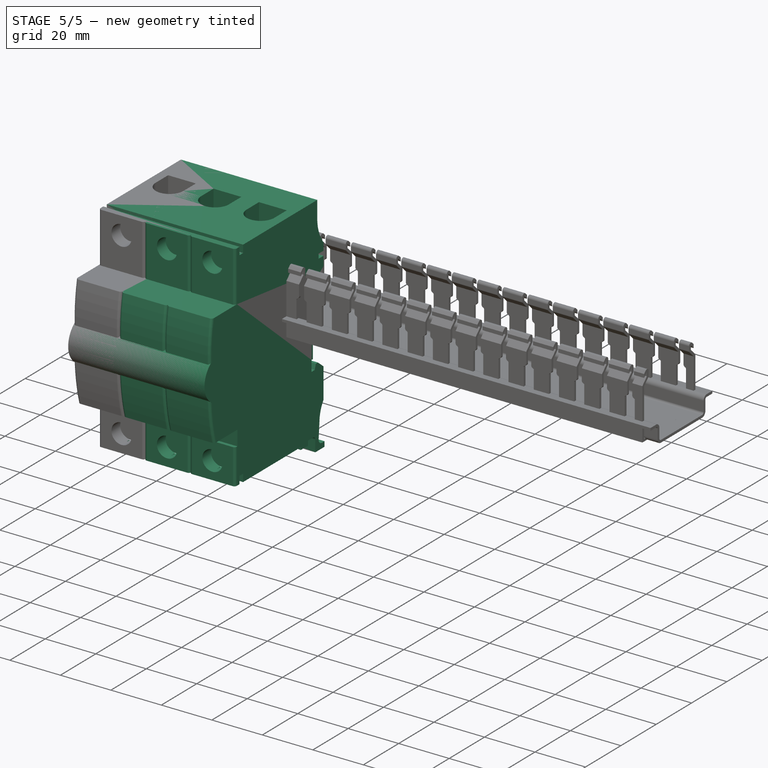
[diagram: stage 5 of 5 — iso view after this stage's code; geometry added in this stage tinted green]
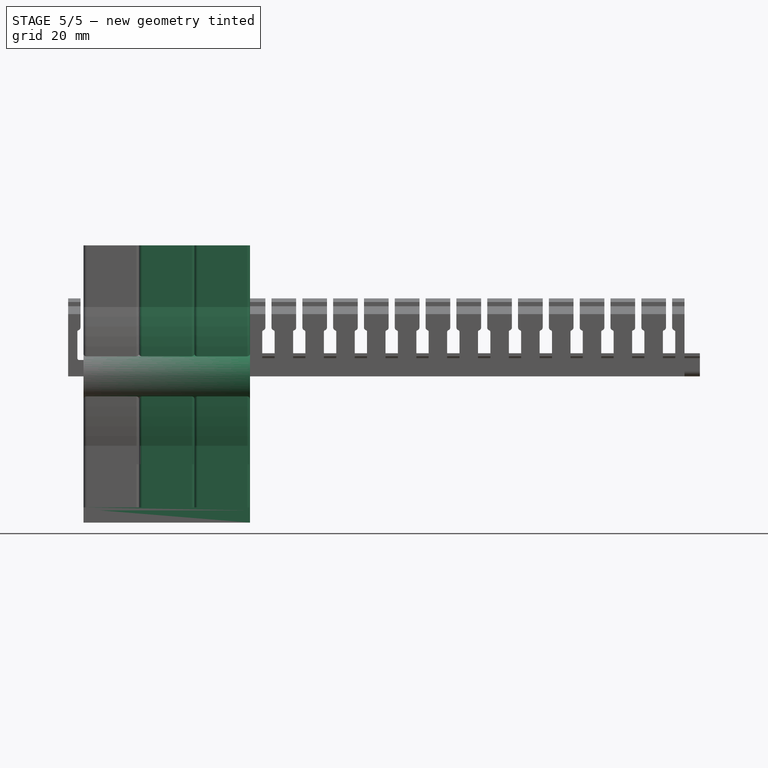
[diagram: stage 5 of 5 — front view after this stage's code; geometry added in this stage tinted green]
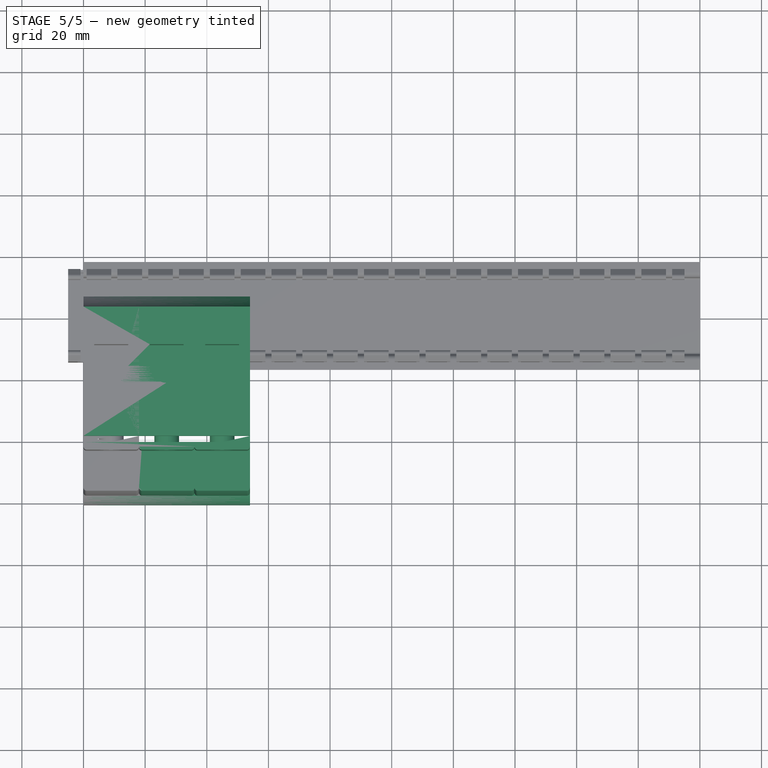
[diagram: stage 5 of 5 — top view after this stage's code; geometry added in this stage tinted green]
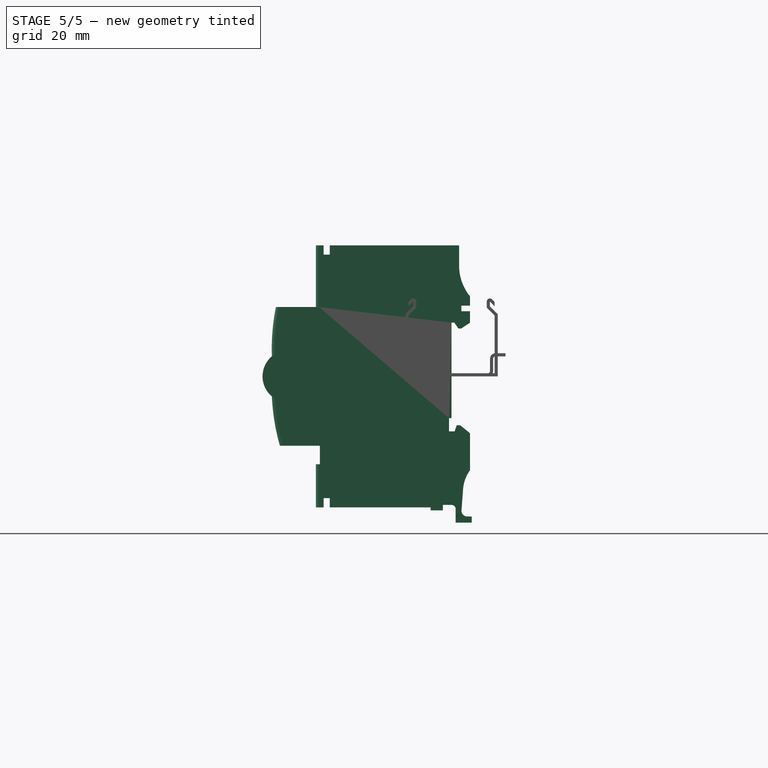
[diagram: stage 5 of 5 — right view after this stage's code; geometry added in this stage tinted green]
FEATURE [App::Point] Origin004
  Role = Origin
FEATURE [Part::Feature] Part__Feature  label="UT_2.5-select"
  AttacherType = Attacher::AttachEngine3D
  Placement = pos=(5.15,-7.19886,17.4678) rot=(0.552363,0.624332,0.552363;2.02535rad)
  shape: bbox 5.15 x 48 x 46.85 mm, 140 faces (baked)
FEATURE [Sketcher::SketchObject] Sketch
  ArcFitTolerance = 1e-06
  AttachmentSupport = -> [YZ_Plane]
  ExternalTypes = [0]
  FullyConstrained = true
  MakeInternals = false
  MapMode = 5
  Placement = pos=(0,0,0) rot=(0.57735,0.57735,0.57735;2.0944rad)
  sketch-geometry (50):
    g0: LineSegment StartX=-44 StartY=42.5 StartZ=0 EndX=-41.5 EndY=42.5 EndZ=0
    g1: LineSegment StartX=-41.5 StartY=42.5 StartZ=0 EndX=-41.5 EndY=39.5 EndZ=0
    g2: LineSegment StartX=-41.5 StartY=39.5 StartZ=0 EndX=-39.5 EndY=39.5 EndZ=0
    g3: LineSegment StartX=-39.5 StartY=39.5 StartZ=0 EndX=-39.5 EndY=42.5 EndZ=0
    g4: LineSegment StartX=-39.5 StartY=42.5 StartZ=0 EndX=2.4498 EndY=42.5 EndZ=0
    g5: LineSegment StartX=2.4498 StartY=42.5 StartZ=0 EndX=2.4498 EndY=36 EndZ=0
    g6: ArcOfCircle CenterX=18.4498 CenterY=36 CenterZ=0 NormalX=0 NormalY=0 NormalZ=1 AngleXU=0 Radius=16 StartAngle=3.14159 EndAngle=3.82073
    g7: LineSegment StartX=6 StartY=25.95 StartZ=0 EndX=6 EndY=22.95 EndZ=0
    g8: LineSegment StartX=6 StartY=22.95 StartZ=0 EndX=3.2 EndY=22.95 EndZ=0
    g9: LineSegment StartX=3.2 StartY=22.95 StartZ=0 EndX=3.2 EndY=21.15 EndZ=0
    g10: LineSegment StartX=3.2 StartY=21.15 StartZ=0 EndX=6 EndY=21.15 EndZ=0
    g11: LineSegment StartX=6 StartY=21.15 StartZ=0 EndX=6 EndY=17.45 EndZ=0
    g12: LineSegment StartX=6 StartY=17.45 StartZ=0 EndX=3.2 EndY=15.55 EndZ=0
    g13: LineSegment StartX=3.2 StartY=15.55 StartZ=0 EndX=2.2 EndY=15.55 EndZ=0
    g14: LineSegment StartX=2.2 StartY=15.55 StartZ=0 EndX=0.9 EndY=17.45 EndZ=0
    g15: LineSegment StartX=0.9 StartY=17.45 StartZ=0 EndX=1e-16 EndY=17.45 EndZ=0
    g16: LineSegment StartX=1e-16 StartY=17.45 StartZ=0 EndX=1e-16 EndY=-13.55 EndZ=0
    g17: LineSegment StartX=1e-16 StartY=-13.55 StartZ=0 EndX=-0.8 EndY=-13.55 EndZ=0
    g18: LineSegment StartX=-0.8 StartY=-13.55 StartZ=0 EndX=-0.8 EndY=-17.85 EndZ=0
    g19: LineSegment StartX=-0.8 StartY=-17.85 StartZ=0 EndX=1 EndY=-17.85 EndZ=0
    g20: LineSegment StartX=1 StartY=-17.85 StartZ=0 EndX=1.7 EndY=-15.85 EndZ=0
    g21: LineSegment StartX=1.7 StartY=-15.85 StartZ=0 EndX=2.8 EndY=-15.85 EndZ=0
    g22: LineSegment StartX=2.8 StartY=-15.85 StartZ=0 EndX=6 EndY=-18.45 EndZ=0
    g23: LineSegment StartX=6 StartY=-18.45 StartZ=0 EndX=6 EndY=-30.45 EndZ=0
    g24: ArcOfCircle CenterX=15.7189 CenterY=-37.4887 CenterZ=0 NormalX=0 NormalY=0 NormalZ=1 AngleXU=0 Radius=12 StartAngle=2.51479 EndAngle=3.06747
    g25: LineSegment StartX=3.75184 StartY=-36.6 StartZ=0 EndX=3.23944 EndY=-43.5 EndZ=0
    g26: ArcOfCircle CenterX=5.05 CenterY=-43.6345 CenterZ=0 NormalX=0 NormalY=0 NormalZ=1 AngleXU=0 Radius=1.81555 StartAngle=3.06747 EndAngle=4.71239
    g27: LineSegment StartX=5.05 StartY=-45.45 StartZ=0 EndX=6.55 EndY=-45.45 EndZ=0
    g28: LineSegment StartX=6.55 StartY=-45.45 StartZ=0 EndX=6.55 EndY=-47.45 EndZ=0
    g29: LineSegment StartX=6.55 StartY=-47.45 StartZ=0 EndX=1.35 EndY=-47.45 EndZ=0
    g30: LineSegment StartX=1.35 StartY=-47.45 StartZ=0 EndX=1.35 EndY=-43.05 EndZ=0
    g31: ArcOfCircle CenterX=0 CenterY=-43.05 CenterZ=0 NormalX=0 NormalY=0 NormalZ=1 AngleXU=0 Radius=1.35 StartAngle=0 EndAngle=1.5708
    g32: LineSegment StartX=1e-16 StartY=-41.7 StartZ=0 EndX=-2.8 EndY=-41.7 EndZ=0
    g33: LineSegment StartX=-2.8 StartY=-41.7 StartZ=0 EndX=-2.8 EndY=-43.5 EndZ=0
    g34: LineSegment StartX=-2.8 StartY=-43.5 StartZ=0 EndX=-6.8 EndY=-43.5 EndZ=0
    g35: LineSegment StartX=-6.8 StartY=-43.5 StartZ=0 EndX=-6.8 EndY=-42.5 EndZ=0
    g36: LineSegment StartX=-6.8 StartY=-42.5 StartZ=0 EndX=-39.5 EndY=-42.5 EndZ=0
    g37: LineSegment StartX=-39.5 StartY=-42.5 StartZ=0 EndX=-39.5 EndY=-39.5 EndZ=0
    g38: LineSegment StartX=-39.5 StartY=-39.5 StartZ=0 EndX=-41.5 EndY=-39.5 EndZ=0
    g39: LineSegment StartX=-41.5 StartY=-39.5 StartZ=0 EndX=-41.5 EndY=-42.5 EndZ=0
    g40: LineSegment StartX=-41.5 StartY=-42.5 StartZ=0 EndX=-44 EndY=-42.5 EndZ=0
    g41: LineSegment StartX=-44 StartY=-42.5 StartZ=0 EndX=-44 EndY=-28.5 EndZ=0
    g42: LineSegment StartX=-44 StartY=-28.5 StartZ=0 EndX=-42.7 EndY=-28.5 EndZ=0
    g43: LineSegment StartX=-42.7 StartY=-28.5 StartZ=0 EndX=-42.7 EndY=-22.5 EndZ=0
    g44: LineSegment StartX=-42.7 StartY=-22.5 StartZ=0 EndX=-55.7 EndY=-22.5 EndZ=0
    g45: ArcOfCircle CenterX=-52.8228 CenterY=1e-15 CenterZ=0 NormalX=0 NormalY=0 NormalZ=1 AngleXU=0 Radius=8.5 StartAngle=2.27101 EndAngle=4.01218
    g46: ArcOfCircle CenterX=11.6599 CenterY=8.86857 CenterZ=0 NormalX=0 NormalY=0 NormalZ=1 AngleXU=0 Radius=70 StartAngle=2.94561 EndAngle=3.17544
    g47: LineSegment StartX=-57 StartY=22.5 StartZ=0 EndX=-44 EndY=22.5 EndZ=0
    g48: LineSegment StartX=-44 StartY=22.5 StartZ=0 EndX=-44 EndY=42.5 EndZ=0
    g49: ArcOfCircle CenterX=11.629 CenterY=-3.34779 CenterZ=0 NormalX=0 NormalY=0 NormalZ=1 AngleXU=0 Radius=70 StartAngle=3.18664 EndAngle=3.41873
  constraints (151):
    c: Horizontal(g0)
    c: Coincident(g0,g1)
    c: Vertical(g1)
    c: Coincident(g1,g2)
    c: Horizontal(g2)
    c: Coincident(g2,g3)
    c: Vertical(g3)
    c: Coincident(g3,g4)
    c: Horizontal(g4)
    c: Coincident(g4,g5)
    c: Vertical(g5)
    c: Tangent(g5,g6) = -1.5708
    c: Coincident(g6,g7)
    c: Coincident(g7,g8)
    c: Horizontal(g8)
    c: Coincident(g8,g9)
    c: Vertical(g9)
    c: Coincident(g9,g10)
    c: Horizontal(g10)
    c: Coincident(g10,g11)
    c: Vertical(g11)
    c: Coincident(g11,g12)
    c: Coincident(g12,g13)
    c: Horizontal(g13)
    c: Coincident(g13,g14)
    c: Coincident(g14,g15)
    c: Horizontal(g15)
    c: Coincident(g15,g16)
    c: Vertical(g16)
    c: Coincident(g16,g17)
    c: Coincident(g17,g18)
    c: Vertical(g18)
    c: Coincident(g18,g19)
    c: Coincident(g19,g20)
    c: Coincident(g20,g21)
    c: Horizontal(g21)
    c: Coincident(g21,g22)
    c: Coincident(g22,g23)
    c: Vertical(g23)
    c: Coincident(g24,g25)
    c: Tangent(g25,g26) = -1.5708
    c: Tangent(g26,g27) = -1.5708
    c: Coincident(g27,g28)
    c: Coincident(g28,g29)
    c: Horizontal(g29)
    c: Coincident(g29,g30)
    c: Vertical(g30)
    c: Tangent(g30,g31) = -1.5708
    c: Horizontal(g32)
    c: Coincident(g32,g33)
    c: Vertical(g33)
    c: Coincident(g33,g34)
    c: Horizontal(g34)
    c: Coincident(g34,g35)
    c: Vertical(g35)
    c: Coincident(g35,g36)
    c: Horizontal(g36)
    c: Coincident(g36,g37)
    c: Vertical(g37)
    c: Coincident(g37,g38)
    c: Horizontal(g38)
    c: Coincident(g38,g39)
    c: Vertical(g39)
    c: Coincident(g39,g40)
    c: Horizontal(g40)
    c: Coincident(g40,g41)
    c: Vertical(g41)
    c: Coincident(g41,g42)
    c: Horizontal(g42)
    c: Coincident(g42,g43)
    c: Vertical(g43)
    c: Coincident(g43,g44)
    c: Horizontal(g44)
    c: Coincident(g46,g47)
    c: Horizontal(g47)
    c: Coincident(g47,g48)
    c: Coincident(g48,g0)
    c: Vertical(g48)
    c: Coincident(g49,g44)
    c: Equal(g44,g47)
    c: DistanceY(g41,g41) = 14
    c: Horizontal(g36,g39)
    c: Vertical(g38,g1)
    c: Distance(g42,g42) = 1.3
    c: Horizontal(g0,g3)
    c: Equal(g3,g37)
    c: Equal(g38,g2)
    c: Radius(g6) = 16
    c: Vertical(g7)
    c: Vertical(g10,g7)
    c: Distance(g9,g9) = 1.8
    c: DistanceY(g5,g5) = 6.5
    c: DistanceY(g7,g7) = 3
    c: Distance(g11,g11) = 3.7
    c: DistanceX(g12,g11) = 2.8
    c: Distance(g13,g13) = 1
    c: DistanceX(g14,g14) = 1.3
    c: DistanceY(g33,g4) = 86
    c: Horizontal(g17)
    c: DistanceY(g16,g16) = 31
    c: DistanceY(g18,g18) = 4.3
    c: Horizontal(g19)
    c: Vertical(g22,g11)
    c: DistanceX(g15,g11) = 6
    c: DistanceX(g0,g15) = 44
    c: Vertical(g31,g16)
    c: Tangent(g31,g32) = -1.5708
    c: Vertical(g28)
    c: Horizontal(g27)
    c: Distance(g28,g28) = 2
    c: Distance(g30,g30) = 4.4
    c: DistanceX(g34,g34) = 4
    c: Distance(g19,g19) = 1.8
    c: Distance(g21,g21) = 1.1
    c: DistanceX(g22,g22) = 3.2
    c: DistanceX(g20,g20) = 0.7
    c: Coincident(g24,g23)
    c: Distance(g33,g33) = 1.8
    c: Distance(g27,g27) = 1.5
    c: DistanceY(g23,g23) = 12
    c: DistanceY(g22,g22) = 2.6
    c: DistanceY(g44,g46) = 45
    c: DistanceX(g29,g29) = 5.2
    c: DistanceX(g40,g40) = 2.5
    c: DistanceX(g38,g38) = 2
    c: Radius(g24) = 12
    c: Tangent(g25,g24,g24) = -1.5708
    c: DistanceY(g48,g48) = 20
    c: DistanceY(g40,g44) = 20
    c: Horizontal(g33,g25)
    c: DistanceY(g27,g23) = 15
    c: DistanceX(g32,g32) = 2.8
    c: DistanceY(g20,g20) = 2
    c: DistanceX(g47,g47) = 13
    c: Coincident(g45,g49)
    c: Coincident(g45,g46)
    c: DistanceY(g3,g3) = 3
    c: Equal(g49,g46)
    c: Distance(g8,g8) = 2.8
    c: DistanceY(g14,g14) = 1.9
    c: Horizontal(g11,g14)
    c: DistanceY(g45,g46) = 16
    c: DistanceY(g44,g45) = 16
    c: Vertical(g45,g45)
    c: Radius(g31) = 1.35
    c: DistanceY(g25,g25) = 6.9
    c: Symmetric(g0,g40,g-1)
    c: Radius(g45) = 8.5
    c: DistanceX(g45,g46) = 1.3
    c: Vertical(g16,g-1)
    c: Radius(g49) = 70
FEATURE [PartDesign::Pad] Pad
  Direction = (1,0,0)
  Length = 18
  Length2 = 10
  Placement = pos=(0,0,0) rot=(1,1,1;2.0944rad)
  Profile = -> Sketch
  ReferenceAxis = -> Sketch [N_Axis]
  Refine = true
  Suppressed = false
  Type = 0
FEATURE [PartDesign::Fillet] Fillet
  Base = -> Pad [Edge6,Edge132,Edge138,Edge144,Edge149,Edge7,Edge150,Edge145,Edge133]
  BaseFeature = -> Pad
  Placement = pos=(0,0,0) rot=(1,1,1;2.0944rad)
  Radius = 1
  Refine = true
  SupportTransform = false
  Suppressed = false
  UseAllEdges = false
FEATURE [Sketcher::SketchObject] Sketch001
  ArcFitTolerance = 1e-06
  AttachmentSupport = -> [Fillet]
  ExternalGeometry = -> [Fillet]
  ExternalTypes = [0]
  FullyConstrained = true
  MakeInternals = false
  MapMode = 5
  Placement = pos=(-9.7e-15,-44,0) rot=(0.57735,0.57735,-0.57735;2.0944rad)
  sketch-geometry (2):
    g0: Circle CenterX=35.5 CenterY=9 CenterZ=0 NormalX=0 NormalY=0 NormalZ=1 AngleXU=0 Radius=4
    g1: Circle CenterX=-35.5 CenterY=9 CenterZ=0 NormalX=0 NormalY=0 NormalZ=1 AngleXU=0 Radius=4
  constraints (6):
    c: Symmetric(g-6,g-5,g0)
    c: DistanceX(g0,g-5) = 7
    c: DistanceX(g-4,g1) = 7
    c: Equal(g1,g0)
    c: Diameter(g1) = 8
    c: Horizontal(g1,g0)
FEATURE [PartDesign::Pocket] Pocket
  BaseFeature = -> Fillet
  Direction = (0,1,0)
  Length = 5
  Length2 = 5
  Placement = pos=(0,0,0) rot=(1,1,1;2.0944rad)
  Profile = -> Sketch001
  ReferenceAxis = -> Sketch001 [N_Axis]
  Refine = true
  Suppressed = false
  Type = 0
FEATURE [Sketcher::SketchObject] Sketch003
  ArcFitTolerance = 1e-06
  AttachmentSupport = -> [Pocket]
  ExternalGeometry = -> [Pocket]
  ExternalTypes = [0]
  FullyConstrained = true
  MakeInternals = false
  MapMode = 5
  Placement = pos=(0,9.4e-15,42.5) rot=(0,0,-1;1.5708rad)
  sketch-geometry (6):
    g0: LineSegment StartX=9.8 StartY=3.5 StartZ=0 EndX=16.8 EndY=3.5 EndZ=0
    g1: LineSegment StartX=16.8 StartY=14.5 StartZ=0 EndX=9.8 EndY=14.5 EndZ=0
    g2: LineSegment StartX=9.8 StartY=14.5 StartZ=0 EndX=9.8 EndY=3.5 EndZ=0
    g3: ArcOfCircle CenterX=16.8 CenterY=9 CenterZ=0 NormalX=0 NormalY=0 NormalZ=1 AngleXU=0 Radius=5.5 StartAngle=4.71239 EndAngle=7.85398
    g4: LineSegment [constr] StartX=2.8 StartY=18 StartZ=0 EndX=16.8 EndY=9 EndZ=0
    g5: LineSegment [constr] StartX=16.8 StartY=9 StartZ=0 EndX=2.8 EndY=4.8e-14 EndZ=0
  constraints (16):
    c: Horizontal(g0)
    c: Horizontal(g1)
    c: Vertical(g1,g0)
    c: Coincident(g2,g1)
    c: Coincident(g2,g0)
    c: Coincident(g3,g0)
    c: Tangent(g3,g1) = -1.5708
    c: DistanceY(g2,g2) = 11
    c: DistanceX(g1,g1) = 7
    c: Vertical(g0,g1)
    c: Coincident(g4,g-3)
    c: Coincident(g4,g3)
    c: Coincident(g5,g3)
    c: Coincident(g5,g-3)
    c: Equal(g5,g4)
    c: DistanceX(g4,g4) = 14
FEATURE [PartDesign::Pocket] Pocket001
  BaseFeature = -> Pocket
  Direction = (0,0,-1)
  Length = 15
  Length2 = 5
  Placement = pos=(0,0,0) rot=(1,1,1;2.0944rad)
  Profile = -> Sketch003
  ReferenceAxis = -> Sketch003 [N_Axis]
  Refine = true
  Suppressed = false
  Type = 0
FEATURE [Sketcher::SketchObject] Sketch004
  ArcFitTolerance = 1e-06
  AttachmentSupport = -> [Pocket001]
  ExternalGeometry = -> [Pocket001]
  ExternalTypes = [0]
  FullyConstrained = true
  MakeInternals = false
  MapMode = 5
  Placement = pos=(0,-9.4e-15,-42.5) rot=(0.707107,0.707107,0;3.14159rad)
  sketch-geometry (6):
    g0: LineSegment StartX=-9.8 StartY=14.5 StartZ=0 EndX=-16.8 EndY=14.5 EndZ=0
    g1: LineSegment StartX=-16.8 StartY=3.5 StartZ=0 EndX=-9.8 EndY=3.5 EndZ=0
    g2: LineSegment [constr] StartX=-2.8 StartY=1.11e-14 StartZ=0 EndX=-16.8 EndY=9 EndZ=0
    g3: LineSegment [constr] StartX=-16.8 StartY=9 StartZ=0 EndX=-2.8 EndY=18 EndZ=0
    g4: LineSegment StartX=-9.8 StartY=3.5 StartZ=0 EndX=-9.8 EndY=14.5 EndZ=0
    g5: ArcOfCircle CenterX=-16.8 CenterY=9 CenterZ=0 NormalX=0 NormalY=0 NormalZ=1 AngleXU=0 Radius=5.5 StartAngle=1.5708 EndAngle=4.71239
  constraints (16):
    c: Equal(g3,g2)
    c: Coincident(g4,g1)
    c: Coincident(g4,g0)
    c: Coincident(g5,g0)
    c: Coincident(g2,g3)
    c: Coincident(g2,g5)
    c: Tangent(g5,g1) = -1.5708
    c: Horizontal(g0)
    c: DistanceY(g4,g4) = 11
    c: Horizontal(g1)
    c: Vertical(g0,g1)
    c: DistanceX(g0,g0) = 7
    c: Vertical(g4)
    c: Coincident(g3,g-3)
    c: Coincident(g-3,g2)
    c: DistanceX(g3,g3) = 14
FEATURE [PartDesign::Pocket] Pocket002
  BaseFeature = -> Pocket001
  Direction = (0,0,1)
  Length = 15
  Length2 = 5
  Placement = pos=(0,0,0) rot=(1,1,1;2.0944rad)
  Profile = -> Sketch004
  ReferenceAxis = -> Sketch004 [N_Axis]
  Refine = true
  Suppressed = false
  Type = 0
FEATURE [PartDesign::LinearPattern] LinearPattern
  BaseFeature = -> Pocket002
  Direction = -> X_Axis
  Length = 36
  Mode = 1
  Occurrences = 3
  Offset = 18
  Placement = pos=(0,0,0) rot=(1,1,1;2.0944rad)
  Refine = true
  Suppressed = false
  TransformMode = 1
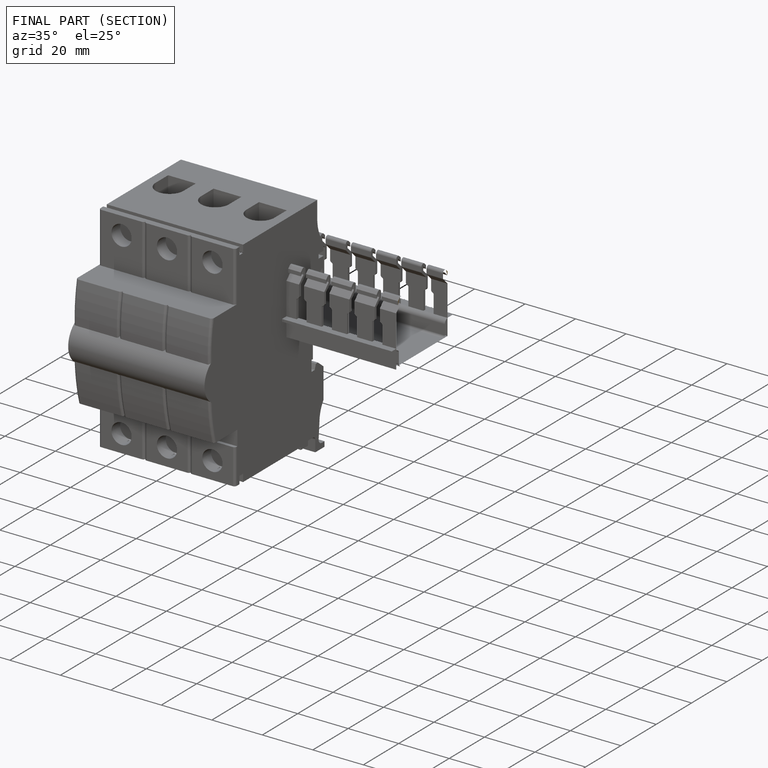
[diagram: finished part — half-section view (interior)]
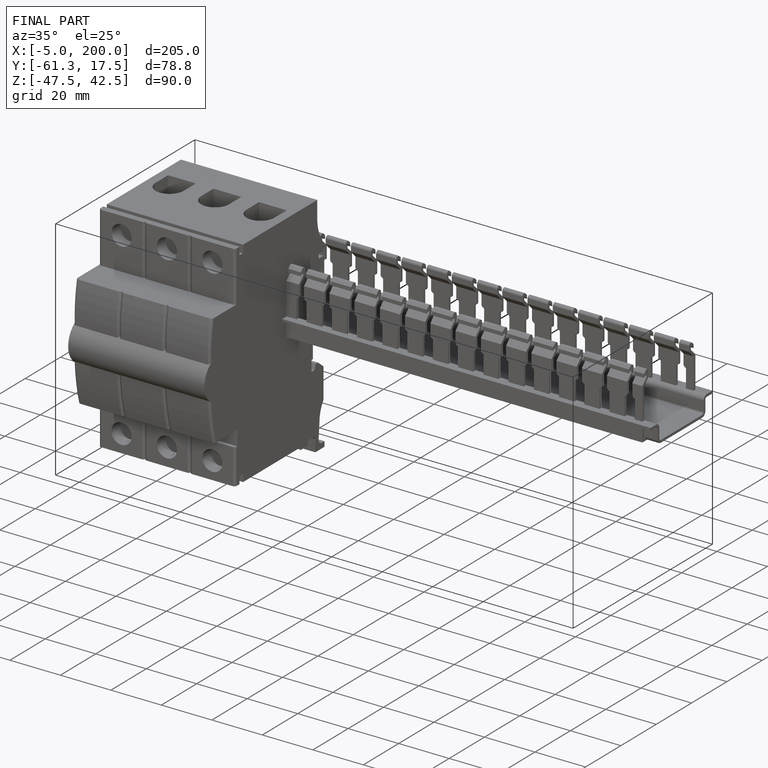
[diagram: finished part — iso view with bounding-box wireframe]
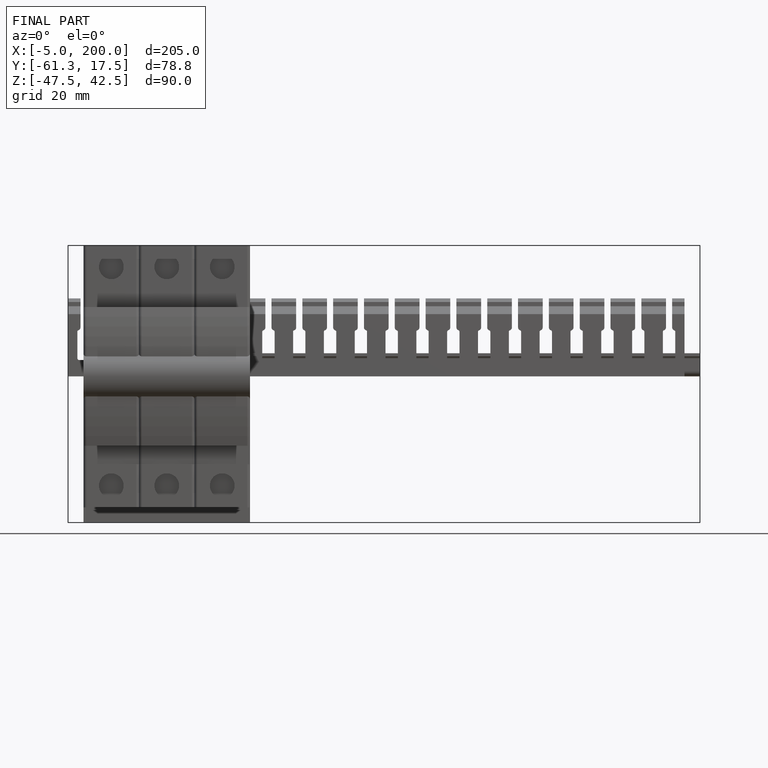
[diagram: finished part — front view with bounding-box wireframe]
